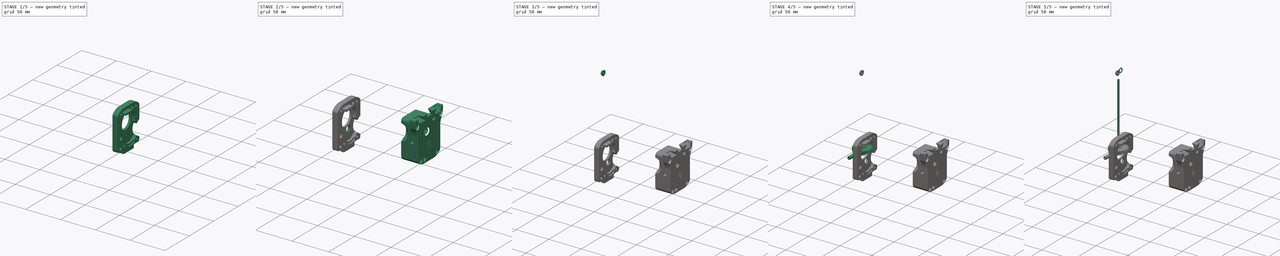
[diagram: build sequence overview — one tinted view per stage of 5, left to right]
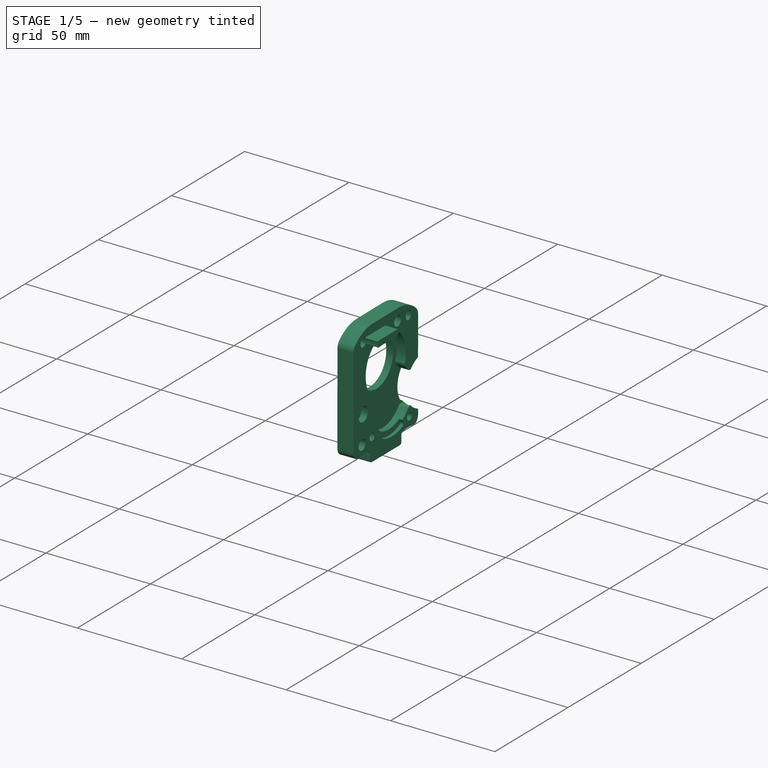
[diagram: stage 1 of 5 — iso view after this stage's code; geometry added in this stage tinted green]
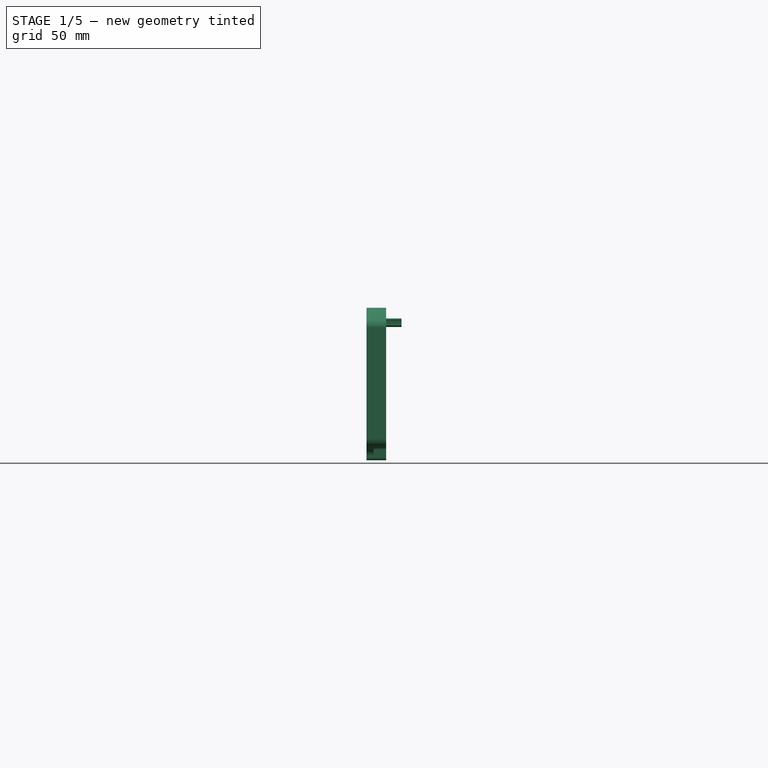
[diagram: stage 1 of 5 — front view after this stage's code; geometry added in this stage tinted green]
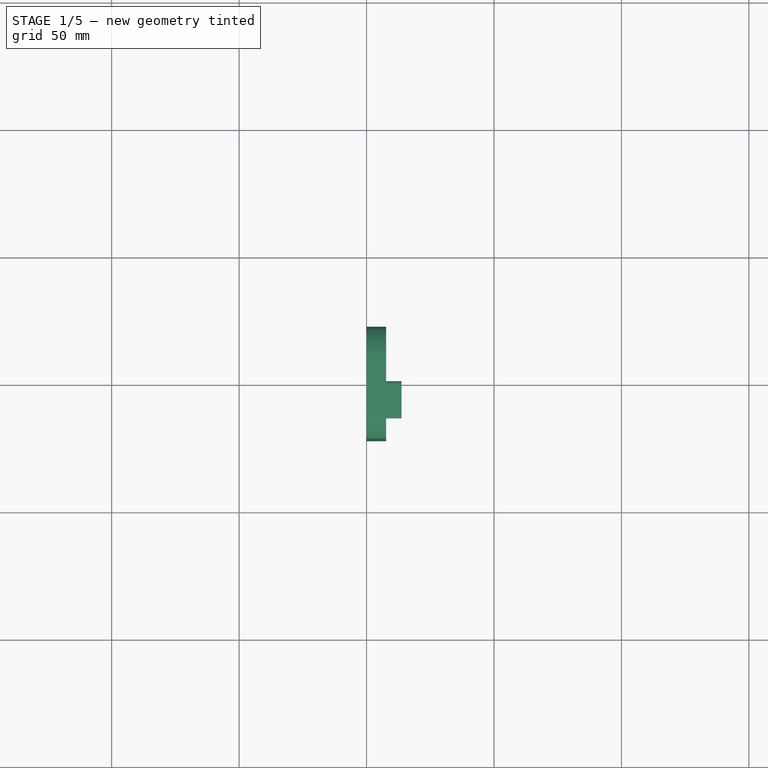
[diagram: stage 1 of 5 — top view after this stage's code; geometry added in this stage tinted green]
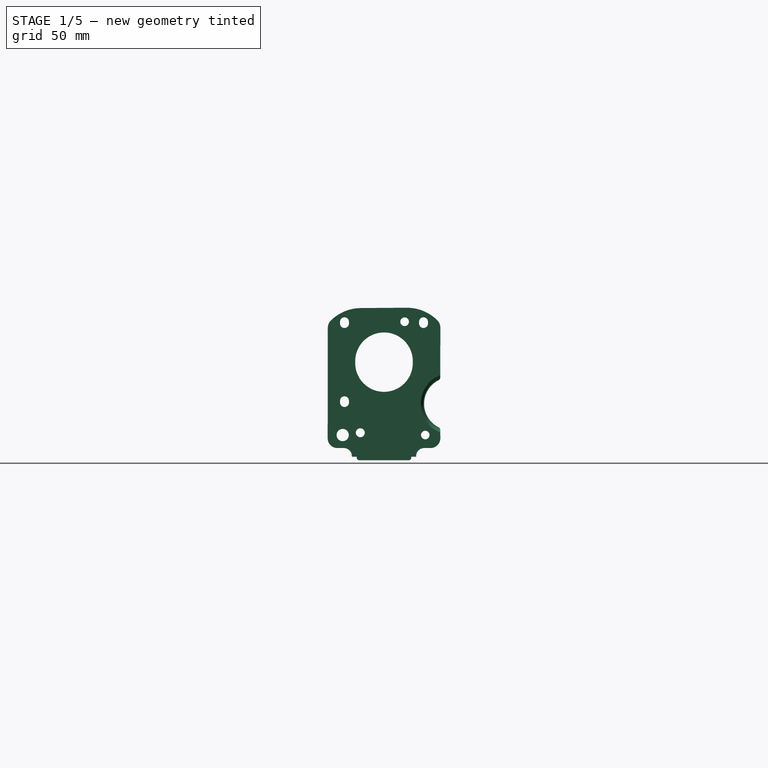
[diagram: stage 1 of 5 — right view after this stage's code; geometry added in this stage tinted green]
FCSTD DOCUMENT  (FreeCAD 0.20R30841 (Git))
Label: full
License: Creative Commons Attribution
LicenseURL: http://creativecommons.org/licenses/by/4.0/
objects: Sketcher::SketchObject×41, PartDesign::Pocket×24, Part::Feature×18, PartDesign::Pad×14, PartDesign::Body×13, App::Part×13, PartDesign::Plane×5, PartDesign::Groove×2, PartDesign::FeaturePython×2, App::Link×2, PartDesign::Chamfer×2, PartDesign::Fillet×1, PartDesign::Revolution×1, PartDesign::FeatureBase×1, PartDesign::Line×1, PartDesign::Mirrored×1, Spreadsheet::Sheet×1
note: 219 computed .brp shape members not serialized (recipe doc carries the construction recipe); baked Part::Feature solids carry a one-line shape summary decoded from their .brp

FEATURE [PartDesign::Body] Body025  label="ExtruderBody"
  AutoGroupSolids = false
  BaseFeature = -> Solid109
  ExportMode = 0
  Group = -> [BaseFeature,Sketch266,Pocket062,Sketch001,Pocket001,Sketch002,Pocket002,Sketch285,Pad125,Sketch274,Sketch275,Sketch276,Sketch277,Sketch278,Pocket072,Pocket063,Pocket064,Pocket065,Pocket066]
  Origin = -> Origin063
  Placement = pos=(0,155.429,37.0456) rot=(1,0,0;3.14159rad)
  Tip = -> Pocket066
  TreeRank = 2862
  _ExportChildren = -> [BaseFeature,Pocket062,Pocket001,Pocket002,Pad125,Pocket072,Pocket063,Pocket064,Pocket065,Pocket066]
  _GroupVersion = 1
FEATURE [App::Part] Part  label="Extruder_Body"
  ExportMode = 1
  Group = -> [Body025]
  Origin = -> Origin
  Placement = pos=(48.2,0,0) rot=(0,0,1;0rad)
  TreeRank = 2864
  _ExportChildren = -> [Body025]
  _GroupVersion = 1
FEATURE [PartDesign::Line] DatumLine
  AttacherType = Attacher::AttachEngineLine
  AttachmentOffset = pos=(26,-16.3,0) rot=(0,0,1;0rad)
  Length = 10
  MapMode = 29
  MinimumLength = 10
  Placement = pos=(0,26,-16.3) rot=(0.57735,0.57735,0.57735;2.0944rad)
  ResizeMode = 0
  Support = -> [X_Axis]
  TreeRank = 1991
FEATURE [PartDesign::Plane] DatumPlane004
  AttachmentOffset = pos=(0,0,13.7) rot=(0,0,1;0rad)
  Length = 10
  MapMode = 5
  MinimumLength = 10
  MinimumWidth = 10
  Placement = pos=(13.7,-3e-15,3e-15) rot=(0.57735,0.57735,0.57735;2.0944rad)
  ResizeMode = 0
  Support = -> [YZ_Plane]
  TreeRank = 1988
  Width = 10
FEATURE [Sketcher::SketchObject] Sketch271
  FullyConstrained = false
  MapMode = 5
  Placement = pos=(0,0,0) rot=(0.57735,0.57735,0.57735;2.0944rad)
  Support = -> [YZ_Plane]
  TreeRank = 1967
  sketch-geometry (32):
    g0: ArcOfCircle CenterX=0 CenterY=0.35 CenterZ=0 NormalX=0 NormalY=0 NormalZ=1 AngleXU=0 Radius=11.3 StartAngle=-9e-16 EndAngle=3.14159
    g1: ArcOfCircle CenterX=0 CenterY=-0.35 CenterZ=0 NormalX=0 NormalY=0 NormalZ=1 AngleXU=0 Radius=11.3 StartAngle=3.14159 EndAngle=6.28319
    g2: LineSegment StartX=-11.3 StartY=0.35 StartZ=0 EndX=-11.3 EndY=-0.35 EndZ=0
    g3: LineSegment StartX=11.3 StartY=0.35 StartZ=0 EndX=11.3 EndY=-0.35 EndZ=0
    g4: LineSegment StartX=-22.0442 StartY=13.5881 StartZ=0 EndX=-22.0996 EndY=-29.8966 EndZ=0
    g5: LineSegment StartX=-8.95788 StartY=21.225 StartZ=0 EndX=8.95882 EndY=21.3517 EndZ=0
    g6: LineSegment StartX=22.1004 StartY=13.5946 StartZ=0 EndX=22.0806 EndY=-6.19773 EndZ=0
    g7: LineSegment StartX=22.0806 StartY=-26.4764 StartZ=0 EndX=22.0997 EndY=-29.8966 EndZ=0
    g8: LineSegment StartX=18.3004 StartY=-33.6951 StartZ=0 EndX=15.8009 EndY=-33.6966 EndZ=0
    g9: LineSegment StartX=10.7009 StartY=-37.5014 StartZ=0 EndX=10.7009 EndY=-37.1035 EndZ=0
    g10: LineSegment StartX=-10.6991 StartY=-37.5014 StartZ=0 EndX=-10.6991 EndY=-37.1035 EndZ=0
    g11: LineSegment StartX=-12.6134 StartY=-37.1035 StartZ=0 EndX=-10.6991 EndY=-37.1035 EndZ=0
    g12: LineSegment StartX=10.7009 StartY=-37.1035 StartZ=0 EndX=12.6152 EndY=-37.1035 EndZ=0
    g13: LineSegment StartX=-9.69911 StartY=-38.5014 StartZ=0 EndX=9.70089 EndY=-38.5014 EndZ=0
    g14: LineSegment StartX=-12.6134 StartY=-36.5943 StartZ=0 EndX=-12.6134 EndY=-37.1035 EndZ=0
    g15: LineSegment StartX=12.6152 StartY=-36.5943 StartZ=0 EndX=12.6152 EndY=-37.1035 EndZ=0
    g16: ArcOfCircle CenterX=-9.69911 CenterY=-37.5014 CenterZ=0 NormalX=0 NormalY=0 NormalZ=1 AngleXU=0 Radius=1 StartAngle=3.14159 EndAngle=4.71239
    g17: ArcOfCircle CenterX=-15.7991 CenterY=-36.8966 CenterZ=0 NormalX=0 NormalY=0 NormalZ=1 AngleXU=0 Radius=3.2 StartAngle=0.0946094 EndAngle=1.5708
    g18: LineSegment StartX=-18.2996 StartY=-33.6966 StartZ=0 EndX=-15.7991 EndY=-33.6966 EndZ=0
    g19: ArcOfCircle CenterX=-18.2996 CenterY=-29.8966 CenterZ=0 NormalX=0 NormalY=0 NormalZ=1 AngleXU=0 Radius=3.8 StartAngle=3.14159 EndAngle=4.71239
    g20: ArcOfCircle CenterX=15.8009 CenterY=-36.8966 CenterZ=0 NormalX=0 NormalY=0 NormalZ=1 AngleXU=0 Radius=3.2 StartAngle=1.5708 EndAngle=3.04698
    g21: ArcOfCircle CenterX=18.3012 CenterY=-29.8966 CenterZ=0 NormalX=0 NormalY=0 NormalZ=1 AngleXU=0 Radius=3.79852 StartAngle=4.71219 EndAngle=6.28319
    g22: ArcOfCircle CenterX=26.076 CenterY=-16.3371 CenterZ=0 NormalX=0 NormalY=0 NormalZ=1 AngleXU=0 Radius=10.3458 StartAngle=2.03975 EndAngle=4.24343
    g23: ArcOfCircle CenterX=18.1004 CenterY=13.5946 CenterZ=0 NormalX=0 NormalY=0 NormalZ=1 AngleXU=0 Radius=4 StartAngle=6.28319 EndAngle=7.07409
    g24: ArcOfCircle CenterX=8.95882 CenterY=4.35173 CenterZ=0 NormalX=0 NormalY=0 NormalZ=1 AngleXU=0 Radius=17 StartAngle=0.790904 EndAngle=1.5708
    g25: ArcOfCircle CenterX=-18.0454 CenterY=13.4925 CenterZ=0 NormalX=0 NormalY=0 NormalZ=1 AngleXU=0 Radius=4 StartAngle=2.34304 EndAngle=3.11767
    g26: ArcOfCircle CenterX=-8.92865 CenterY=4.22498 CenterZ=0 NormalX=0 NormalY=0 NormalZ=1 AngleXU=0 Radius=17 StartAngle=1.57252 EndAngle=2.34683
    g27: ArcOfCircle CenterX=20.7157 CenterY=-5.89797 CenterZ=0 NormalX=0 NormalY=0 NormalZ=1 AngleXU=0 Radius=1.3974 StartAngle=5.29922 EndAngle=6.06699
    g28: ArcOfCircle CenterX=20.9478 CenterY=-26.6174 CenterZ=0 NormalX=0 NormalY=0 NormalZ=1 AngleXU=0 Radius=1.14153 StartAngle=0.12381 EndAngle=1.07635
    g29: LineSegment StartX=21.4895 StartY=-25.6126 StartZ=0 EndX=21.4001 EndY=-25.5659 EndZ=0
    g30: LineSegment StartX=21.4895 StartY=-7.06158 StartZ=0 EndX=21.4001 EndY=-7.10821 EndZ=0
    g31: ArcOfCircle CenterX=9.68901 CenterY=-37.4895 CenterZ=0 NormalX=0 NormalY=0 NormalZ=1 AngleXU=0 Radius=1.01195 StartAngle=4.72413 EndAngle=6.27145
  constraints (47):
    c: Tangent(g0,g3) = 1.5708
    c: Tangent(g0,g2) = -1.5708
    c: Tangent(g2,g1) = -1.5708
    c: Tangent(g3,g1) = 1.5708
    c: Vertical(g2)
    c: PointOnObject(g0,g-2)
    c: Radius(g0) = 11.3
    c: DistanceY(g1,g0) = 0.7
    c: Symmetric(g1,g0,g-1)
    c: Vertical(g10)
    c: Vertical(g9)
    c: Horizontal(g11)
    c: Horizontal(g12)
    c: Coincident(g12,g9)
    c: Vertical(g14)
    c: Vertical(g15)
    c: Coincident(g12,g15)
    c: Coincident(g11,g14)
    c: Coincident(g10,g11)
    c: Coincident(g16,g10)
    c: Coincident(g16,g13)
    c: Coincident(g17,g14)
    c: Coincident(g18,g17)
    c: Coincident(g19,g18)
    c: Coincident(g19,g4)
    c: Coincident(g20,g15)
    c: Coincident(g20,g8)
    c: Coincident(g21,g8)
    c: Coincident(g23,g6)
    c: Coincident(g24,g5)
    c: Coincident(g24,g23)
    c: Coincident(g25,g4)
    c: Coincident(g26,g5)
    c: Coincident(g26,g25)
    c: Coincident(g27,g6)
    c: Coincident(g28,g7)
    c: Coincident(g29,g28)
    c: Coincident(g29,g22)
    c: Coincident(g30,g27)
    c: Coincident(g30,g22)
    c: Coincident(g7,g21)
    c: Coincident(g31,g13)
    c: Coincident(g31,g9)
    c: Radius(g25) = 4
    c: Radius(g26) = 17
    c: Equal(g24,g26)
    c: Horizontal(g10,g9)
FEATURE [PartDesign::Pad] Pad126
  AddSubType = 0
  CheckUpToFaceLimits = true
  ClaimChildren = false
  Direction = (1,-2e-16,3e-16)
  Fit = 0
  FitJoin = 0
  InnerFit = 0
  InnerFitJoin = 0
  InnerTaperAngle = 0
  InnerTaperAngleRev = 0
  Length = 7.7
  Length2 = 100
  Linearize = true
  NewSolid = false
  Placement = pos=(0,0,0) rot=(0.57735,0.57735,0.57735;2.0944rad)
  Profile = -> Sketch271
  Suppress = false
  TreeRank = 1968
  Type = 0
  _ProfileBasedVersion = 1
FEATURE [Sketcher::SketchObject] Sketch272
  FullyConstrained = false
  MapMode = 5
  Placement = pos=(7.7,-1.7e-15,1.7e-15) rot=(0.57735,0.57735,0.57735;2.0944rad)
  Support = -> [Pad126]
  TreeRank = 1969
  sketch-geometry (10):
    g0: LineSegment StartX=-13.547 StartY=17.1517 StartZ=0 EndX=-1.5175 EndY=17.1517 EndZ=0
    g1: LineSegment StartX=-2.56231 StartY=13.8099 StartZ=0 EndX=-0.534892 EndY=13.9988 EndZ=0
    g2: LineSegment StartX=-0.389238 StartY=14.3132 StartZ=0 EndX=-0.534892 EndY=13.9988 EndZ=0
    g3: LineSegment StartX=-13.9103 StartY=16.5843 StartZ=0 EndX=-13.8192 EndY=14.6628 EndZ=0
    g4: ArcOfCircle CenterX=-13.547 CenterY=16.7517 CenterZ=0 NormalX=0 NormalY=0 NormalZ=1 AngleXU=0 Radius=0.4 StartAngle=1.5708 EndAngle=3.5735
    g5: ArcOfCircle CenterX=-13.4352 CenterY=14.5511 CenterZ=0 NormalX=0 NormalY=0 NormalZ=1 AngleXU=0 Radius=0.4 StartAngle=2.85845 EndAngle=4.80998
    g6: ArcOfCircle CenterX=-9.29911 CenterY=-27.6966 CenterZ=0 NormalX=0 NormalY=0 NormalZ=1 AngleXU=0 Radius=42.0497 StartAngle=1.40989 EndAngle=1.66839
    g7: ArcOfCircle CenterX=1.23331 CenterY=13.8059 CenterZ=0 NormalX=0 NormalY=0 NormalZ=1 AngleXU=0 Radius=1.7 StartAngle=2.18907 EndAngle=2.83857
    g8: ArcOfCircle CenterX=-0.33169 CenterY=16.0061 CenterZ=0 NormalX=0 NormalY=0 NormalZ=1 AngleXU=0 Radius=1 StartAngle=5.33066 EndAngle=7.60955
    g9: ArcOfCircle CenterX=-1.5175 CenterY=11.2517 CenterZ=0 NormalX=0 NormalY=0 NormalZ=1 AngleXU=0 Radius=5.9 StartAngle=1.32637 EndAngle=1.5708
  constraints (10):
    c: Coincident(g2,g1)
    c: Coincident(g4,g3)
    c: Coincident(g4,g0)
    c: Coincident(g5,g3)
    c: Coincident(g6,g5)
    c: Coincident(g6,g1)
    c: Coincident(g7,g2)
    c: Coincident(g8,g7)
    c: Coincident(g9,g0)
    c: Coincident(g9,g8)
FEATURE [PartDesign::Pad] Pad120
  AddSubType = 0
  BaseFeature = -> Pad126
  CheckUpToFaceLimits = true
  ClaimChildren = false
  Direction = (1,-7e-16,3e-16)
  Fit = 0
  FitJoin = 0
  InnerFit = 0
  InnerFitJoin = 0
  InnerTaperAngle = 0
  InnerTaperAngleRev = 0
  Length = 6
  Length2 = 100
  Linearize = true
  NewSolid = false
  Placement = pos=(0,0,0) rot=(0.57735,0.57735,0.57735;2.0944rad)
  Profile = -> Sketch272
  Suppress = false
  TreeRank = 1970
  Type = 0
  _ProfileBasedVersion = 1
FEATURE [Sketcher::SketchObject] Sketch273
  FullyConstrained = false
  MapMode = 5
  Placement = pos=(13.7,-3e-15,3e-15) rot=(0.57735,0.57735,0.57735;2.0944rad)
  Support = -> [DatumPlane004]
  TreeRank = 1971
  sketch-geometry (16):
    g0: ArcOfCircle CenterX=-15.4996 CenterY=15.1517 CenterZ=0 NormalX=0 NormalY=0 NormalZ=1 AngleXU=0 Radius=1.75 StartAngle=3.14159 EndAngle=6.28319
    g1: ArcOfCircle CenterX=-15.4996 CenterY=15.8517 CenterZ=0 NormalX=0 NormalY=0 NormalZ=1 AngleXU=0 Radius=1.75 StartAngle=0 EndAngle=3.14159
    g2: LineSegment StartX=-13.7496 StartY=15.1517 StartZ=0 EndX=-13.7496 EndY=15.8517 EndZ=0
    g3: LineSegment StartX=-17.2496 StartY=15.1517 StartZ=0 EndX=-17.2496 EndY=15.8517 EndZ=0
    g4: ArcOfCircle CenterX=15.5004 CenterY=15.1517 CenterZ=0 NormalX=0 NormalY=0 NormalZ=1 AngleXU=0 Radius=1.75 StartAngle=3.14159 EndAngle=6.28319
    g5: ArcOfCircle CenterX=15.5004 CenterY=15.8517 CenterZ=0 NormalX=0 NormalY=0 NormalZ=1 AngleXU=0 Radius=1.75 StartAngle=5e-16 EndAngle=3.14159
    g6: LineSegment StartX=17.2504 StartY=15.1517 StartZ=0 EndX=17.2504 EndY=15.8517 EndZ=0
    g7: LineSegment StartX=13.7504 StartY=15.1517 StartZ=0 EndX=13.7504 EndY=15.8517 EndZ=0
    g8: Circle CenterX=-16.1987 CenterY=-28.5966 CenterZ=0 NormalX=0 NormalY=0 NormalZ=1 AngleXU=0 Radius=2.4
    g9: Circle CenterX=-9.29911 CenterY=-27.6966 CenterZ=0 NormalX=0 NormalY=0 NormalZ=1 AngleXU=0 Radius=1.75
    g10: Circle CenterX=16.2004 CenterY=-28.5966 CenterZ=0 NormalX=0 NormalY=0 NormalZ=1 AngleXU=0 Radius=1.67042
    g11: ArcOfCircle CenterX=-15.4996 CenterY=-15.8483 CenterZ=0 NormalX=0 NormalY=0 NormalZ=1 AngleXU=0 Radius=1.75 StartAngle=3.14159 EndAngle=6.28319
    g12: ArcOfCircle CenterX=-15.4996 CenterY=-15.1483 CenterZ=0 NormalX=0 NormalY=0 NormalZ=1 AngleXU=0 Radius=1.75 StartAngle=3e-16 EndAngle=3.14159
    g13: LineSegment StartX=-13.7496 StartY=-15.8483 StartZ=0 EndX=-13.7496 EndY=-15.1483 EndZ=0
    g14: LineSegment StartX=-17.2496 StartY=-15.8483 StartZ=0 EndX=-17.2496 EndY=-15.1483 EndZ=0
    g15: Circle CenterX=8.08783 CenterY=15.8517 CenterZ=0 NormalX=0 NormalY=0 NormalZ=1 AngleXU=0 Radius=1.7
  constraints (27):
    c: Tangent(g0,g3) = 1.5708
    c: Tangent(g0,g2) = -1.5708
    c: Tangent(g2,g1) = -1.5708
    c: Tangent(g3,g1) = 1.5708
    c: Vertical(g2)
    c: Equal(g0,g1)
    c: Radius(g0) = 1.75
    c: DistanceY(g0,g1) = 0.7
    c: Tangent(g4,g7) = 1.5708
    c: Tangent(g4,g6) = -1.5708
    c: Tangent(g6,g5) = -1.5708
    c: Tangent(g7,g5) = 1.5708
    c: Vertical(g6)
    c: Equal(g4,g5)
    c: Equal(g0,g4) = 1.75
    c: DistanceY(g4,g5) = 0.7
    c: Radius(g9) = 1.75
    c: Radius(g8) = 2.4
    c: Tangent(g11,g14) = 1.5708
    c: Tangent(g11,g13) = -1.5708
    c: Tangent(g13,g12) = -1.5708
    c: Tangent(g14,g12) = 1.5708
    c: Vertical(g13)
    c: Equal(g11,g12)
    c: Equal(g0,g11) = 1.75
    c: DistanceY(g11,g12) = 0.7
    c: Radius(g15) = 1.7
FEATURE [PartDesign::Pocket] Pocket003
  AddSubType = 1
  BaseFeature = -> Pad120
  CheckUpToFaceLimits = true
  ClaimChildren = false
  Fit = 0
  FitJoin = 0
  InnerFit = 0
  InnerFitJoin = 0
  InnerTaperAngle = 0
  InnerTaperAngleRev = 0
  Length = 5
  Length2 = 100
  Linearize = true
  NewSolid = false
  Placement = pos=(0,0,0) rot=(0.57735,0.57735,0.57735;2.0944rad)
  Profile = -> Sketch273
  Suppress = false
  TreeRank = 1973
  Type = 1
  _ProfileBasedVersion = 1
  _Version = 0
FEATURE [Sketcher::SketchObject] Sketch286
  FullyConstrained = false
  MapMode = 5
  Placement = pos=(13.7,-3e-15,3e-15) rot=(0.57735,0.57735,0.57735;2.0944rad)
  Support = -> [DatumPlane004]
  TreeRank = 1975
  sketch-geometry (4):
    g0: LineSegment StartX=-18.5996 StartY=-15.8483 StartZ=0 EndX=-18.5996 EndY=-15.1483 EndZ=0
    g1: LineSegment StartX=-12.3996 StartY=-15.8483 StartZ=0 EndX=-12.3996 EndY=-15.1483 EndZ=0
    g2: ArcOfCircle CenterX=-15.4996 CenterY=-15.1483 CenterZ=0 NormalX=0 NormalY=0 NormalZ=1 AngleXU=0 Radius=3.1 StartAngle=6.28319 EndAngle=9.42478
    g3: ArcOfCircle CenterX=-15.4996 CenterY=-15.8483 CenterZ=0 NormalX=0 NormalY=0 NormalZ=1 AngleXU=0 Radius=3.1 StartAngle=3.14159 EndAngle=6.28319
  constraints (4):
    c: Coincident(g2,g0)
    c: Coincident(g2,g1)
    c: Coincident(g3,g1)
    c: Coincident(g3,g0)
FEATURE [PartDesign::Pocket] Pocket004
  AddSubType = 1
  BaseFeature = -> Pocket003
  CheckUpToFaceLimits = true
  ClaimChildren = false
  Fit = 0
  FitJoin = 0
  InnerFit = 0
  InnerFitJoin = 0
  InnerTaperAngle = 0
  InnerTaperAngleRev = 0
  Length = 9
  Length2 = 100
  Linearize = true
  NewSolid = false
  Placement = pos=(0,0,0) rot=(0.57735,0.57735,0.57735;2.0944rad)
  Profile = -> Sketch286
  Suppress = false
  TreeRank = 1977
  Type = 0
  _ProfileBasedVersion = 1
  _Version = 0
FEATURE [Sketcher::SketchObject] Sketch287
  FullyConstrained = false
  MapMode = 5
  Placement = pos=(13.7,-3e-15,3e-15) rot=(0.57735,0.57735,0.57735;2.0944rad)
  Support = -> [DatumPlane004]
  TreeRank = 1978
  sketch-geometry (1):
    g0: Circle CenterX=8.08783 CenterY=15.8517 CenterZ=0 NormalX=0 NormalY=0 NormalZ=1 AngleXU=0 Radius=2.4
  constraints (1):
    c: Radius(g0) = 2.4
FEATURE [PartDesign::Pocket] Pocket005
  AddSubType = 1
  BaseFeature = -> Pocket004
  CheckUpToFaceLimits = true
  ClaimChildren = false
  Fit = 0
  FitJoin = 0
  InnerFit = 0
  InnerFitJoin = 0
  InnerTaperAngle = 0
  InnerTaperAngleRev = 0
  Length = 10
  Length2 = 100
  Linearize = true
  NewSolid = false
  Placement = pos=(0,0,0) rot=(0.57735,0.57735,0.57735;2.0944rad)
  Profile = -> Sketch287
  Suppress = false
  TreeRank = 1979
  Type = 0
  _ProfileBasedVersion = 1
  _Version = 0
FEATURE [Sketcher::SketchObject] Sketch288
  FullyConstrained = false
  MapMode = 5
  Placement = pos=(13.7,-3e-15,3e-15) rot=(0.57735,0.57735,0.57735;2.0944rad)
  Support = -> [DatumPlane004]
  TreeRank = 1980
  sketch-geometry (8):
    g0: LineSegment StartX=11.4528 StartY=-28.5632 StartZ=0 EndX=11.9328 EndY=-29.4172 EndZ=0
    g1: LineSegment StartX=11.5621 StartY=-28.0467 StartZ=0 EndX=-2.07915 EndY=-28.4944 EndZ=0
    g2: ArcOfCircle CenterX=-1.29349 CenterY=-30.396 CenterZ=0 NormalX=0 NormalY=0 NormalZ=1 AngleXU=0 Radius=1.2 StartAngle=2.6937 EndAngle=4.33055
    g3: ArcOfCircle CenterX=-2.3114 CenterY=-28.82 CenterZ=0 NormalX=0 NormalY=0 NormalZ=1 AngleXU=0 Radius=0.4 StartAngle=5.83529 EndAngle=7.23449
    g4: LineSegment StartX=-1.95085 StartY=-28.9933 StartZ=0 EndX=-2.37512 EndY=-29.8763 EndZ=0
    g5: ArcOfCircle CenterX=11.8015 CenterY=-28.3672 CenterZ=0 NormalX=0 NormalY=0 NormalZ=1 AngleXU=0 Radius=0.4 StartAngle=2.2123 EndAngle=3.65363
    g6: ArcOfCircle CenterX=10.8867 CenterY=-30.0052 CenterZ=0 NormalX=0 NormalY=0 NormalZ=1 AngleXU=0 Radius=1.2 StartAngle=5.15837 EndAngle=6.79522
    g7: ArcOfCircle CenterX=4.35179 CenterY=-16.3371 CenterZ=0 NormalX=0 NormalY=0 NormalZ=1 AngleXU=0 Radius=16.35 StartAngle=4.33055 EndAngle=5.15837
  constraints (8):
    c: Coincident(g3,g1)
    c: Coincident(g4,g3)
    c: Coincident(g4,g2)
    c: Coincident(g5,g1)
    c: Coincident(g5,g0)
    c: Coincident(g6,g0)
    c: Coincident(g7,g2)
    c: Coincident(g7,g6)
FEATURE [PartDesign::Pocket] Pocket006
  AddSubType = 1
  BaseFeature = -> Pocket005
  CheckUpToFaceLimits = true
  ClaimChildren = false
  Fit = 0
  FitJoin = 0
  InnerFit = 0
  InnerFitJoin = 0
  InnerTaperAngle = 0
  InnerTaperAngleRev = 0
  Length = 7.6
  Length2 = 100
  Linearize = true
  NewSolid = false
  Placement = pos=(0,0,0) rot=(0.57735,0.57735,0.57735;2.0944rad)
  Profile = -> Sketch288
  Suppress = false
  TreeRank = 1982
  Type = 0
  _ProfileBasedVersion = 1
  _Version = 0
FEATURE [Sketcher::SketchObject] Sketch289
  FullyConstrained = false
  MapMode = 5
  Placement = pos=(0,0,0) rot=(0.57735,0.57735,-0.57735;4.18879rad)
  Support = -> [Pocket006]
  TreeRank = 1983
  sketch-geometry (1):
    g0: Circle CenterX=-9.29911 CenterY=27.6966 CenterZ=0 NormalX=0 NormalY=0 NormalZ=1 AngleXU=0 Radius=2.4
  constraints (1):
    c: Radius(g0) = 2.4
FEATURE [PartDesign::Pocket] Pocket007
  AddSubType = 1
  BaseFeature = -> Pocket006
  CheckUpToFaceLimits = true
  ClaimChildren = false
  Fit = 0
  FitJoin = 0
  InnerFit = 0
  InnerFitJoin = 0
  InnerTaperAngle = 0
  InnerTaperAngleRev = 0
  Length = 4.5
  Length2 = 100
  Linearize = true
  NewSolid = false
  Placement = pos=(0,0,0) rot=(0.57735,0.57735,0.57735;2.0944rad)
  Profile = -> Sketch289
  Suppress = false
  TreeRank = 1985
  Type = 0
  _ProfileBasedVersion = 1
  _Version = 0
FEATURE [Sketcher::SketchObject] Sketch290
  FullyConstrained = false
  MapMode = 5
  Placement = pos=(13.7,-3e-15,3e-15) rot=(0.57735,0.57735,0.57735;2.0944rad)
  Support = -> [DatumPlane004]
  TreeRank = 1986
  sketch-geometry (12):
    g0: ArcOfCircle CenterX=-19.4615 CenterY=-31.2713 CenterZ=0 NormalX=0 NormalY=0 NormalZ=1 AngleXU=0 Radius=2 StartAngle=4.01066 EndAngle=4.87036
    g1: ArcOfCircle CenterX=-11.7991 CenterY=-34.3367 CenterZ=0 NormalX=0 NormalY=0 NormalZ=1 AngleXU=0 Radius=1.1 StartAngle=6.28319 EndAngle=7.69488
    g2: ArcOfCircle CenterX=11.8009 CenterY=-34.3367 CenterZ=0 NormalX=0 NormalY=0 NormalZ=1 AngleXU=0 Radius=1.1 StartAngle=1.7299 EndAngle=3.14159
    g3: ArcOfCircle CenterX=19.4626 CenterY=-31.2712 CenterZ=0 NormalX=0 NormalY=0 NormalZ=1 AngleXU=0 Radius=2 StartAngle=4.55445 EndAngle=5.41422
    g4: ArcOfCircle CenterX=-15.3991 CenterY=-56.7729 CenterZ=0 NormalX=0 NormalY=0 NormalZ=1 AngleXU=0 Radius=23.8231 StartAngle=1.4117 EndAngle=1.72877
    g5: ArcOfCircle CenterX=15.4009 CenterY=-56.7729 CenterZ=0 NormalX=0 NormalY=0 NormalZ=1 AngleXU=0 Radius=23.8231 StartAngle=1.41285 EndAngle=1.7299
    g6: LineSegment StartX=-20.7526 StartY=-32.7988 StartZ=0 EndX=-20.7938 EndY=-39.3757 EndZ=0
    g7: LineSegment StartX=-20.7938 StartY=-39.3757 StartZ=0 EndX=-10.6991 EndY=-39.3757 EndZ=0
    g8: LineSegment StartX=-10.6991 StartY=-39.3757 StartZ=0 EndX=-10.6991 EndY=-34.3367 EndZ=0
    g9: LineSegment StartX=10.7009 StartY=-34.3367 StartZ=0 EndX=10.7009 EndY=-39.3757 EndZ=0
    g10: LineSegment StartX=10.7009 StartY=-39.3757 StartZ=0 EndX=20.7538 EndY=-39.3757 EndZ=0
    g11: LineSegment StartX=20.7538 StartY=-39.3757 StartZ=0 EndX=20.7538 EndY=-32.7985 EndZ=0
  constraints (18):
    c: Coincident(g4,g0)
    c: Coincident(g4,g1)
    c: Coincident(g5,g2)
    c: Coincident(g5,g3)
    c: Coincident(g0,g6)
    c: Coincident(g6,g7)
    c: Coincident(g7,g8)
    c: Coincident(g8,g1)
    c: Vertical(g8)
    c: Tangent(g8,g1)
    c: Tangent(g2,g9) = -1.5708
    c: Coincident(g9,g10)
    c: Horizontal(g10)
    c: Coincident(g10,g11)
    c: Coincident(g11,g3)
    c: Vertical(g11)
    c: Horizontal(g7)
    c: Horizontal(g7,g9)
FEATURE [PartDesign::Pocket] Pocket008
  AddSubType = 1
  BaseFeature = -> Pocket007
  CheckUpToFaceLimits = true
  ClaimChildren = false
  Fit = 0
  FitJoin = 0
  InnerFit = 0
  InnerFitJoin = 0
  InnerTaperAngle = 0
  InnerTaperAngleRev = 0
  Length = 10.9
  Length2 = 100
  Linearize = true
  NewSolid = false
  Placement = pos=(0,0,0) rot=(0.57735,0.57735,0.57735;2.0944rad)
  Profile = -> Sketch290
  Suppress = false
  TreeRank = 1987
  Type = 0
  _ProfileBasedVersion = 1
  _Version = 0
FEATURE [Sketcher::SketchObject] Sketch279
  FullyConstrained = false
  MapMode = 5
  Placement = pos=(13.7,-3e-15,3e-15) rot=(0.57735,0.57735,0.57735;2.0944rad)
  Support = -> [DatumPlane004]
  TreeRank = 1989
  sketch-geometry (12):
    g0: ArcOfCircle CenterX=0 CenterY=0.35 CenterZ=0 NormalX=0 NormalY=0 NormalZ=1 AngleXU=0 Radius=13.7 StartAngle=1e-16 EndAngle=3.14159
    g1: ArcOfCircle CenterX=0 CenterY=-0.35 CenterZ=0 NormalX=0 NormalY=0 NormalZ=1 AngleXU=0 Radius=13.7 StartAngle=3.14159 EndAngle=3.9957
    g2: LineSegment StartX=-13.7 StartY=0.35 StartZ=0 EndX=-13.7 EndY=-0.35 EndZ=0
    g3: LineSegment StartX=13.7 StartY=0.35 StartZ=0 EndX=13.7 EndY=-0.35 EndZ=0
    g4: ArcOfCircle CenterX=26.076 CenterY=-16.3371 CenterZ=0 NormalX=0 NormalY=0 NormalZ=1 AngleXU=0 Radius=11.6 StartAngle=3.92648 EndAngle=8.63353
    g5: ArcOfCircle CenterX=16.678 CenterY=-6.40675 CenterZ=0 NormalX=0 NormalY=0 NormalZ=1 AngleXU=0 Radius=2.09027 StartAngle=3.81311 EndAngle=5.34963
    g6: ArcOfCircle CenterX=4.34739 CenterY=-16.35 CenterZ=0 NormalX=0 NormalY=0 NormalZ=1 AngleXU=0 Radius=13.75 StartAngle=2.81327 EndAngle=5.63529
    g7: ArcOfCircle CenterX=15.0599 CenterY=-4.80082 CenterZ=0 NormalX=0 NormalY=0 NormalZ=1 AngleXU=0 Radius=2.02473 StartAngle=2.98859 EndAngle=3.82601
    g8: ArcOfCircle CenterX=-10.7325 CenterY=-11.8066 CenterZ=0 NormalX=0 NormalY=0 NormalZ=1 AngleXU=0 Radius=2.06731 StartAngle=6.23012 EndAngle=6.85977
    g9: ArcOfCircle CenterX=0 CenterY=-0.35 CenterZ=0 NormalX=0 NormalY=0 NormalZ=1 AngleXU=0 Radius=13.7 StartAngle=5.97603 EndAngle=6.28319
    g10: ArcOfCircle CenterX=4.34739 CenterY=-16.35 CenterZ=0 NormalX=0 NormalY=0 NormalZ=1 AngleXU=0 Radius=13.75 StartAngle=0.679704 EndAngle=0.843304
    g11: ArcOfCircle CenterX=16.6619 CenterY=-26.2157 CenterZ=0 NormalX=0 NormalY=0 NormalZ=1 AngleXU=0 Radius=2.06921 StartAngle=0.947689 EndAngle=2.28213
  constraints (24):
    c: Tangent(g0,g3) = 1.5708
    c: Tangent(g0,g2) = -1.5708
    c: Tangent(g2,g1) = -1.5708
    c: Coincident(g3,g9) = 1.5708
    c: Vertical(g2)
    c: PointOnObject(g0,g-2)
    c: Radius(g0) = 13.7
    c: DistanceY(g2,g2) = 0.7
    c: Symmetric(g0,g1,g-1)
    c: Radius(g4) = 11.6
    c: Radius(g6) = 13.75
    c: Coincident(g8,g6)
    c: Equal(g1,g9)
    c: Coincident(g1,g9)
    c: Coincident(g8,g1)
    c: Coincident(g7,g10)
    c: Coincident(g7,g9)
    c: Equal(g6,g10)
    c: Coincident(g6,g10)
    c: Coincident(g5,g4)
    c: PointOnObject(g10,g5)
    c: Coincident(g11,g4)
    c: Coincident(g11,g6)
    c: DistanceY(g6) = -16.35
FEATURE [PartDesign::Pocket] Pocket009
  AddSubType = 1
  BaseFeature = -> Pocket008
  CheckUpToFaceLimits = true
  ClaimChildren = false
  Fit = 0
  FitJoin = 0
  InnerFit = 0
  InnerFitJoin = 0
  InnerTaperAngle = 0
  InnerTaperAngleRev = 0
  Length = 10.5
  Length2 = 100
  Linearize = true
  NewSolid = false
  Placement = pos=(0,0,0) rot=(0.57735,0.57735,0.57735;2.0944rad)
  Profile = -> Sketch279
  Suppress = false
  TreeRank = 1990
  Type = 0
  _ProfileBasedVersion = 1
  _Version = 1
FEATURE [Sketcher::SketchObject] Sketch291
  FullyConstrained = false
  MapMode = 5
  Placement = pos=(9.7e-15,22.0868,-0.0221739) rot=(0.577543,0.577543,0.576964;4.18821rad)
  Support = -> [Pocket009]
  TreeRank = 1992
  sketch-geometry (4):
    g0: ArcOfCircle CenterX=-16.35 CenterY=6.07101 CenterZ=0 NormalX=0 NormalY=0 NormalZ=1 AngleXU=0 Radius=11.2237 StartAngle=2.99594 EndAngle=3.65076
    g1: LineSegment StartX=-27.4549 StartY=7.7 StartZ=0 EndX=-16.35 EndY=7.7 EndZ=0
    g2: LineSegment StartX=-16.35 StartY=7.7 StartZ=0 EndX=-16.35 EndY=0.6 EndZ=0
    g3: LineSegment StartX=-26.15 StartY=0.6 StartZ=0 EndX=-16.35 EndY=0.6 EndZ=0
  constraints (12):
    c: Coincident(g1,g2)
    c: Horizontal(g1)
    c: Vertical(g2)
    c: Coincident(g1,g0)
    c: Vertical(g0,g1)
    c: DistanceX(g2) = -16.35
    c: DistanceY(g1) = 7.7
    c: DistanceX(g0,g2) = 9.8
    c: DistanceY(g-1,g0) = 0.6
    c: Coincident(g3,g2)
    c: Coincident(g3,g0)
    c: Horizontal(g3)
FEATURE [PartDesign::Groove] Groove001
  AddSubType = 1
  Angle = 360
  Axis = (1,0,0)
  Base = (0,26,-16.3)
  BaseFeature = -> Pocket009
  ClaimChildren = false
  Fit = 0
  FitJoin = 0
  InnerFit = 0
  InnerFitJoin = 0
  Linearize = true
  NewSolid = false
  Placement = pos=(0,0,0) rot=(0.57735,0.57735,0.57735;2.0944rad)
  Profile = -> Sketch291
  ReferenceAxis = -> DatumLine
  Reversed = true
  Suppress = false
  TreeRank = 1993
  _ProfileBasedVersion = 1
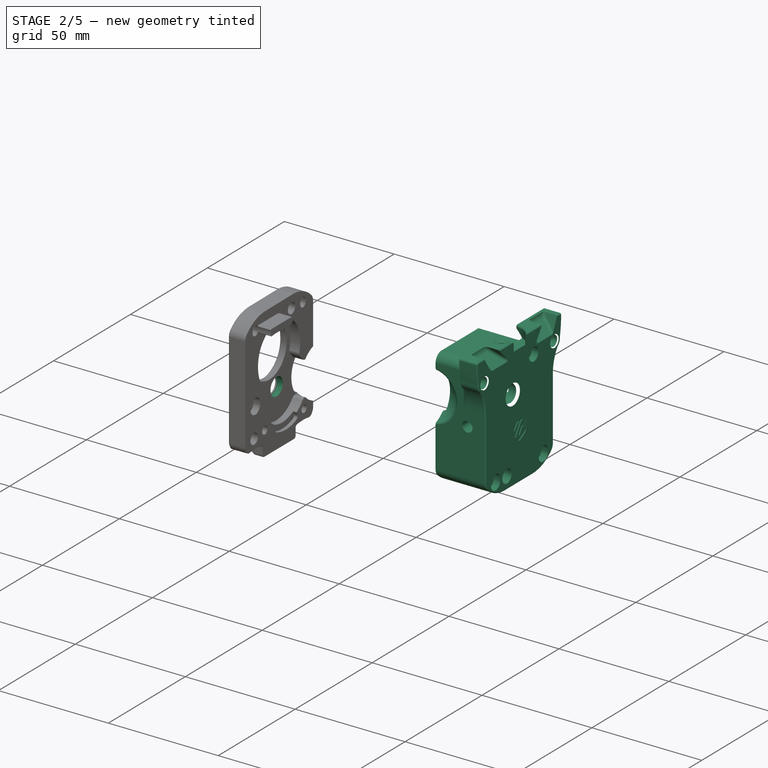
[diagram: stage 2 of 5 — iso view after this stage's code; geometry added in this stage tinted green]
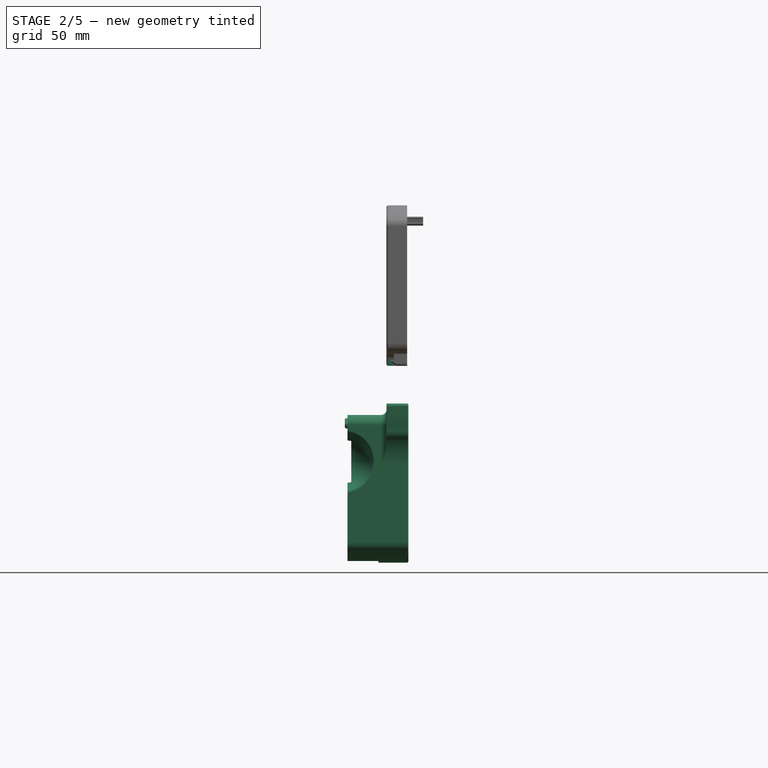
[diagram: stage 2 of 5 — front view after this stage's code; geometry added in this stage tinted green]
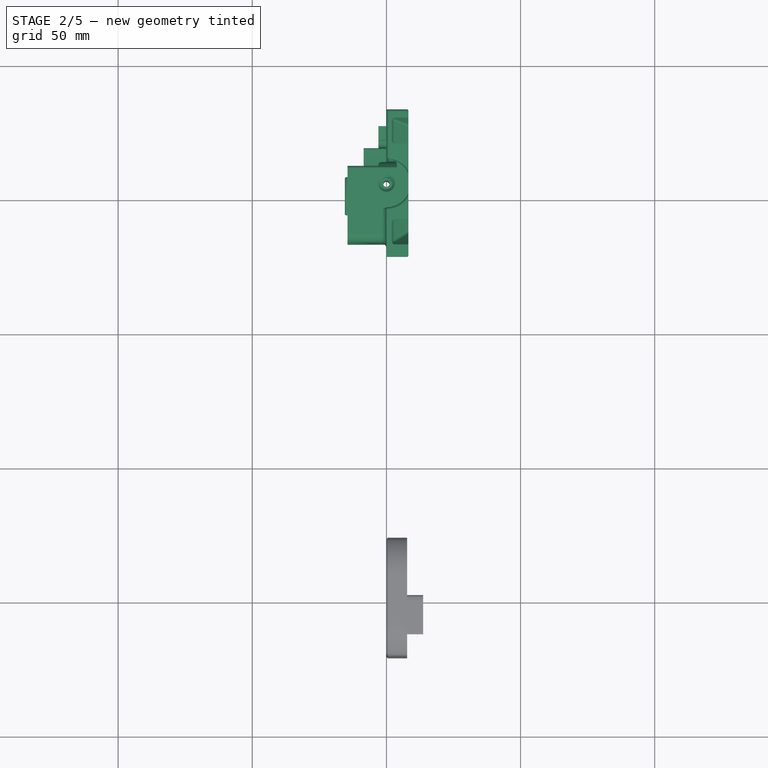
[diagram: stage 2 of 5 — top view after this stage's code; geometry added in this stage tinted green]
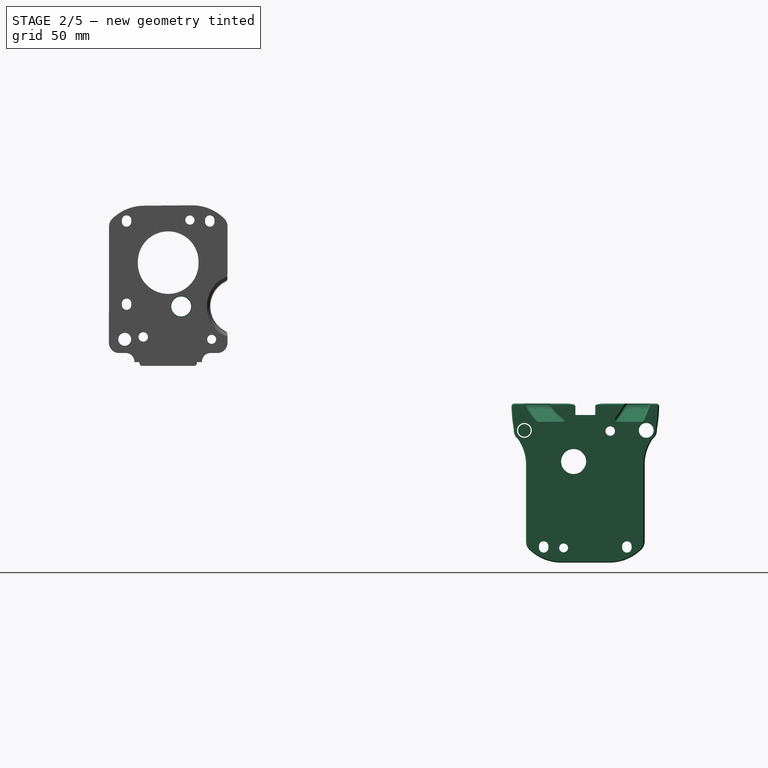
[diagram: stage 2 of 5 — right view after this stage's code; geometry added in this stage tinted green]
FEATURE [PartDesign::Body] Body028  label="MF83_Bearing:2"
  AutoGroupSolids = false
  ExportMode = 0
  Group = -> [Sketch283,Pad123,Sketch284,Pad124]
  Origin = -> Origin066
  Placement = pos=(-13,-8.4,0) rot=(0,0,1;3.14159rad)
  Tip = -> Pad124
  TreeRank = 2299
  _ExportChildren = -> [Pad123,Pad124]
  _GroupVersion = 1
FEATURE [App::Part] Part037  label="MyBits"
  ExportMode = 1
  Group = -> [Body,Body001,Body002,Body010,Body008,Body021,Body022,Body023,Body024,Body027,Body028]
  Origin = -> Origin058
  TreeRank = 2389
  _ExportChildren = -> [Body,Body001,Body002,Body010,Body008,Body021,Body022,Body023,Body024,Body027,Body028]
  _GroupVersion = 1
FEATURE [Part::Feature] Solid008  label="shafft 3 x 20"
  Placement = pos=(0,0,-7) rot=(0.762006,0.457901,0.457901;1.83931rad)
  TreeRank = 2646
  shape: bbox 3.105 x 3.105 x 20 mm, 5 faces (baked)
FEATURE [Part::Feature] Compound  label="M3x5x7 Needlebearing"
  Placement = pos=(0,0,6.5) rot=(0,0,1;0.934483rad)
  TreeRank = 2647
  shape: bbox 4.885 x 4.874 x 7 mm, 53 faces, 6 solids (baked)
FEATURE [Part::Feature] Solid009  label="Direct_Drivegear_without_setscrew (1)"
  TreeRank = 2648
  shape: bbox 10.61 x 10.61 x 14 mm, 128 faces (baked)
FEATURE [App::Link] Link011  label="M3x5x7 Needlebearing:2"
  AutoLinkLabel = true
  AutoPlacement = true
  LinkPlacement = pos=(0,0,-0.501) rot=(0,0,1;0.971749rad)
  LinkedObject = -> Compound
  Placement = pos=(0,0,-0.501) rot=(0,0,1;0.971749rad)
  SyncGroupVisibility = false
  TreeRank = 2649
  _LinkVersion = 1
FEATURE [App::Part] Part039  label="Direct_Drivegear_without_setscrew"
  ExportMode = 1
  Group = -> [Solid008,Compound,Solid009,Link011]
  Origin = -> Origin068
  Placement = pos=(-6.999,4.25,-81.163) rot=(0.235103,0.943108,0.235103;1.62934rad)
  TreeRank = 2651
  _ExportChildren = -> [Solid008,Compound,Solid009,Link011]
  _GroupVersion = 1
FEATURE [Part::Feature] Solid010  label="SOLID"
  TreeRank = 2652
  shape: bbox 19.62 x 16.67 x 46.82 mm, 104 faces (baked)
FEATURE [App::Part] Part040  label="Guidler (1)"
  ExportMode = 1
  Group = -> [Part039,Solid010]
  Origin = -> Origin069
  TreeRank = 2654
  _ExportChildren = -> [Part039,Solid010]
  _GroupVersion = 1
FEATURE [Part::Feature] Solid011  label="SOLID"
  TreeRank = 2656
  shape: bbox 10.6 x 20.85 x 11.48 mm, 57 faces (baked)
FEATURE [App::Part] Part041  label="Latch Shuttle"
  ExportMode = 1
  Group = -> [Solid011]
  Origin = -> Origin070
  Placement = pos=(-1.09324e-11,-0.52364,-241.336) rot=(0,0,1;0rad)
  TreeRank = 2658
  _ExportChildren = -> [Solid011]
  _GroupVersion = 1
FEATURE [Part::Feature] Solid012  label="M3 Thumb Screw (1)^Spring Assembly (1)_Guidler_VORON Clockwork_X Carr
iage"
  Placement = pos=(28.5,-5.79955,-186.247) rot=(1,0,0;3.14159rad)
  TreeRank = 2659
  shape: bbox 12 x 22.5 x 12 mm, 7 faces (baked)
FEATURE [Part::Feature] Solid013  label="Spring Assembly (1)-40^Spring Assembly (1)_Guidler_VORON Clockwork_X 
Carriage"
  TreeRank = 2660
  shape: bbox 6.799 x 11.2 x 6.803 mm, 6 faces (baked)
FEATURE [App::Part] Part042  label="Spring Assembly"
  ExportMode = 1
  Group = -> [Solid012,Solid013]
  Origin = -> Origin071
  Placement = pos=(-28.5,-5.79955,-186.247) rot=(1,0,0;3.14159rad)
  TreeRank = 2662
  _ExportChildren = -> [Solid012,Solid013]
  _GroupVersion = 1
FEATURE [App::Part] Part043  label="Guidler"
  ExportMode = 1
  Group = -> [Part040,Part041,Part042]
  Origin = -> Origin072
  Placement = pos=(17.317,-41.16,58.904) rot=(0,0,1;0rad)
  TreeRank = 2664
  _ExportChildren = -> [Part040,Part041,Part042]
  _GroupVersion = 1
FEATURE [Part::Feature] Solid014  label="Latch"
  Placement = pos=(250.353,-54.2044,-241.043) rot=(0,0,1;0rad)
  TreeRank = 2665
  shape: bbox 11 x 34.34 x 24.06 mm, 84 faces (baked)
FEATURE [Part::Feature] Compound001  label="Shaft-assembly"
  Placement = pos=(24.3081,94.4506,-53.9704) rot=(-0.561818,0.607225,0.561818;2.05016rad)
  TreeRank = 2666
  shape: bbox 25.99 x 26 x 28 mm, 423 faces, 2 solids (baked)
FEATURE [Part::Feature] Solid015  label="MR85 Ballbearing 5x8x2"
  Placement = pos=(20.7338,94.7286,-54.972) rot=(0,0,-1;1.34621rad)
  TreeRank = 2667
  shape: bbox 8 x 8 x 2.5 mm, 8 faces (baked)
FEATURE [Part::Feature] Solid016  label="Direct_Drivegear"
  Placement = pos=(20.7338,94.7286,-42.6707) rot=(0,0,-1;1.64844rad)
  TreeRank = 2668
  shape: bbox 10.58 x 10.58 x 13.8 mm, 131 faces (baked)
FEATURE [App::Link] Link013  label="MR85 Ballbearing 5x8x2:2"
  AutoLinkLabel = true
  AutoPlacement = true
  LinkPlacement = pos=(20.7338,94.7286,-29.8717) rot=(0,0,-1;1.43839rad)
  LinkedObject = -> Solid015
  Placement = pos=(20.7338,94.7286,-29.8717) rot=(0,0,-1;1.43839rad)
  SyncGroupVisibility = false
  TreeRank = 2669
  _LinkVersion = 1
FEATURE [App::Part] Part044  label="Driveshaft Assembly"
  ExportMode = 1
  Group = -> [Compound001,Solid015,Solid016,Link013]
  Origin = -> Origin073
  Placement = pos=(8.23414,-1.05953,-35) rot=(0,0,1;0.087266rad)
  TreeRank = 2671
  _ExportChildren = -> [Compound001,Solid015,Solid016,Link013]
  _GroupVersion = 1
FEATURE [App::Part] Part045  label="BMG Drive Mechanism"
  ExportMode = 1
  Group = -> [Part044]
  Origin = -> Origin074
  Placement = pos=(87.99,-82.7,-117.37) rot=(0.57735,0.57735,0.57735;2.0944rad)
  TreeRank = 2673
  _ExportChildren = -> [Part044]
  _GroupVersion = 1
  expr: Placement.Base.y = -82.2 - <<ss>>.gap_x
FEATURE [Part::Feature] Solid017  label="Motorgear_17T_without_setscrew"
  Placement = pos=(1.4006e-12,-0.000891144,67.0503) rot=(0,0,1;1.61807rad)
  TreeRank = 2674
  shape: bbox 13.11 x 13.02 x 13 mm, 205 faces (baked)
FEATURE [Part::Feature] Solid021  label="NEMA17 Short (4)"
  TreeRank = 2678
  shape: bbox 40.8 x 40.8 x 6 mm, 15 faces (baked)
FEATURE [Part::Feature] Solid022  label="NEMA17 Short (5)"
  TreeRank = 2679
  shape: bbox 42 x 43 x 10 mm, 106 faces (baked)
FEATURE [Part::Feature] Solid023  label="NEMA17 Short (6)"
  TreeRank = 2680
  shape: bbox 21.3 x 4.5 x 4.9 mm, 27 faces (baked)
FEATURE [Part::Feature] Solid020  label="NEMA17 Short (3)"
  TreeRank = 2848
  shape: bbox 42 x 42 x 10.05 mm, 33 faces (baked)
FEATURE [Part::Feature] Solid019  label="NEMA17 Short (2)"
  TreeRank = 2860
  shape: bbox 5 x 5 x 39 mm, 7 faces (baked)
FEATURE [App::Part] Part046  label="NEMA17 Short"
  ExportMode = 1
  Group = -> [Solid017,Solid019,Solid020,Solid021,Solid022,Solid023]
  Origin = -> Origin075
  Placement = pos=(-96.9337,-57.2557,-38.9474) rot=(0.707107,0,0.707107;3.14159rad)
  TreeRank = 2683
  _ExportChildren = -> [Solid017,Solid019,Solid020,Solid021,Solid022,Solid023]
  _GroupVersion = 1
FEATURE [App::Part] Part047  label="Clockwork"
  ExportMode = 1
  Group = -> [Part043,Solid014,Part045,Part046]
  Origin = -> Origin076
  Placement = pos=(-17.3165,-57.2552,88.9044) rot=(1,0,0;3.14159rad)
  TreeRank = 2687
  _ExportChildren = -> [Part043,Solid014,Part045,Part046]
  _GroupVersion = 1
FEATURE [App::Part] Part073  label="Afterburner_Assembly v9"
  ExportMode = 1
  Group = -> [Part047]
  Origin = -> Origin102
  TreeRank = 2847
  _ExportChildren = -> [Part047]
  _GroupVersion = 1
FEATURE [Part::Feature] Solid109  label="SOLID003"
  Placement = pos=(0,151.129,-74.1544) rot=(1,0,0;3.14159rad)
  TreeRank = 2865
  shape: bbox 26.08 x 55.04 x 60.03 mm, 313 faces (baked)
FEATURE [PartDesign::FeatureBase] BaseFeature
  BaseFeature = -> Solid109
  NewSolid = false
  Suppress = false
  TreeRank = 2861
FEATURE [Sketcher::SketchObject] Sketch266
  ExternalGeometry = -> [BaseFeature]
  FullyConstrained = true
  MapMode = 5
  Placement = pos=(0,-2.8412e-12,-56.778) rot=(0,0,1;0rad)
  Support = -> [BaseFeature]
  TreeRank = 584
  sketch-geometry (1):
    g0: Circle CenterX=-9.0599e-07 CenterY=155.464 CenterZ=0 NormalX=0 NormalY=0 NormalZ=1 AngleXU=0 Radius=2.2
  constraints (2):
    c: Coincident(g0,g-3)
    c: Radius(g0) = 2.2
FEATURE [PartDesign::Pocket] Pocket062
  AddSubType = 1
  BaseFeature = -> BaseFeature
  CheckUpToFaceLimits = true
  ClaimChildren = false
  Fit = 0
  FitJoin = 0
  InnerFit = 0
  InnerFitJoin = 0
  InnerTaperAngle = 0
  InnerTaperAngleRev = 0
  Length = 8
  Length2 = 100
  Linearize = true
  NewSolid = false
  Profile = -> Sketch266
  Suppress = false
  TreeRank = 585
  Type = 0
  _ProfileBasedVersion = 1
  _Version = 1
FEATURE [Sketcher::SketchObject] Sketch292
  FullyConstrained = false
  MapMode = 5
  Placement = pos=(-9.7e-15,-22.0615,0.0280685) rot=(0.577105,0.577105,-0.57784;2.09366rad)
  Support = -> [Groove001]
  TreeRank = 1994
  sketch-geometry (3):
    g0: LineSegment StartX=38.8145 StartY=3.79023 StartZ=0 EndX=35.0566 EndY=0 EndZ=0
    g1: LineSegment StartX=35.0566 StartY=0 StartZ=0 EndX=38.8145 EndY=0 EndZ=0
    g2: LineSegment StartX=38.8145 StartY=0 StartZ=0 EndX=38.8145 EndY=3.79023 EndZ=0
  constraints (6):
    c: Coincident(g0,g1)
    c: PointOnObject(g1,g-1)
    c: Coincident(g1,g2)
    c: Coincident(g2,g0)
    c: Vertical(g2)
    c: Horizontal(g1)
FEATURE [PartDesign::Pocket] Pocket010
  AddSubType = 1
  BaseFeature = -> Groove001
  CheckUpToFaceLimits = true
  ClaimChildren = false
  Fit = 0
  FitJoin = 0
  InnerFit = 0
  InnerFitJoin = 0
  InnerTaperAngle = 0
  InnerTaperAngleRev = 0
  Length = 15
  Length2 = 100
  Linearize = true
  NewSolid = false
  Placement = pos=(0,0,0) rot=(0.57735,0.57735,0.57735;2.0944rad)
  Profile = -> Sketch292
  Suppress = false
  TreeRank = 1995
  Type = 0
  _ProfileBasedVersion = 1
  _Version = 1
FEATURE [PartDesign::Mirrored] Mirrored
  AddSubType = 0
  BaseFeature = -> Pocket010
  CopyShape = false
  MirrorPlane = -> XZ_Plane
  NewSolid = false
  OriginalSubs = -> [Pocket010]
  Originals = -> [Pocket010]
  ParallelTransform = true
  Placement = pos=(0,0,0) rot=(0.57735,0.57735,0.57735;2.0944rad)
  SubTransform = true
  Suppress = false
  TreeRank = 1996
  _Version = 3
FEATURE [Sketcher::SketchObject] Sketch293
  FullyConstrained = true
  MapMode = 5
  Placement = pos=(13.7,-3e-15,3e-15) rot=(0.57735,0.57735,0.57735;2.0944rad)
  Support = -> [DatumPlane004]
  TreeRank = 1998
  expr: Constraints[1] = -16.35 + <<ss>>.gap_y
  expr: Constraints[2] = 4.35 + <<ss>>.gap_x
  sketch-geometry (1):
    g0: Circle CenterX=4.85 CenterY=-16.35 CenterZ=0 NormalX=0 NormalY=0 NormalZ=1 AngleXU=0 Radius=13.75
  constraints (3):
    c: Radius(g0) = 13.75
    c: DistanceY(g0) = -16.35
    c: DistanceX(g-1,g0) = 4.85
FEATURE [PartDesign::Pocket] Pocket011
  AddSubType = 1
  BaseFeature = -> Mirrored
  CheckUpToFaceLimits = true
  ClaimChildren = false
  Fit = 0
  FitJoin = 0
  InnerFit = 0
  InnerFitJoin = 0
  InnerTaperAngle = 0
  InnerTaperAngleRev = 0
  Length = 0
  Length2 = 100
  Linearize = true
  NewSolid = false
  Placement = pos=(0,0,0) rot=(0.57735,0.57735,0.57735;2.0944rad)
  Profile = -> Sketch293
  Suppress = false
  TreeRank = 1999
  Type = 3
  UpToFace = -> Mirrored [Face106]
  _ProfileBasedVersion = 1
  _Version = 1
FEATURE [Sketcher::SketchObject] Sketch294
  FullyConstrained = true
  MapMode = 5
  Placement = pos=(13.7,-3e-15,3e-15) rot=(0.57735,0.57735,0.57735;2.0944rad)
  Support = -> [DatumPlane004]
  TreeRank = 2000
  expr: Constraints[1] = 4.35 + <<ss>>.gap_x
  expr: Constraints[2] = -16.35 + <<ss>>.gap_y
  sketch-geometry (1):
    g0: Circle CenterX=4.85 CenterY=-16.35 CenterZ=0 NormalX=0 NormalY=0 NormalZ=1 AngleXU=0 Radius=3.7
  constraints (3):
    c: Radius(g0) = 3.7
    c: DistanceX(g0) = 4.85
    c: DistanceY(g0) = -16.35
FEATURE [PartDesign::Pocket] Pocket012
  AddSubType = 1
  BaseFeature = -> Pocket011
  CheckUpToFaceLimits = true
  ClaimChildren = false
  Fit = 0
  FitJoin = 0
  InnerFit = 0
  InnerFitJoin = 0
  InnerTaperAngle = 0
  InnerTaperAngleRev = 0
  Length = 5
  Length2 = 100
  Linearize = true
  NewSolid = false
  Placement = pos=(0,0,0) rot=(0.57735,0.57735,0.57735;2.0944rad)
  Profile = -> Sketch294
  Suppress = false
  TreeRank = 2001
  Type = 1
  _ProfileBasedVersion = 1
  _Version = 1
FEATURE [Sketcher::SketchObject] Sketch295
  FullyConstrained = true
  MapMode = 5
  Placement = pos=(13.7,-3e-15,3e-15) rot=(0.57735,0.57735,0.57735;2.0944rad)
  Support = -> [DatumPlane004]
  TreeRank = 2002
  expr: Constraints[1] = 4.35 + <<ss>>.gap_x
  expr: Constraints[2] = -16.35 + <<ss>>.gap_y
  sketch-geometry (1):
    g0: Circle CenterX=4.85 CenterY=-16.35 CenterZ=0 NormalX=0 NormalY=0 NormalZ=1 AngleXU=0 Radius=4.05
  constraints (3):
    c: Radius(g0) = 4.05
    c: DistanceX(g0) = 4.85
    c: DistanceY(g0) = -16.35
FEATURE [PartDesign::Pocket] Pocket013
  AddSubType = 1
  BaseFeature = -> Pocket012
  CheckUpToFaceLimits = true
  ClaimChildren = false
  Fit = 0
  FitJoin = 0
  InnerFit = 0
  InnerFitJoin = 0
  InnerTaperAngle = 0
  InnerTaperAngleRev = 0
  Length = 13
  Length2 = 100
  Linearize = true
  NewSolid = false
  Placement = pos=(0,0,0) rot=(0.57735,0.57735,0.57735;2.0944rad)
  Profile = -> Sketch295
  Suppress = false
  TreeRank = 2003
  Type = 0
  _ProfileBasedVersion = 1
  _Version = 1
FEATURE [PartDesign::Chamfer] Chamfer
  AddSubType = 0
  Angle = 45
  Base = -> Pocket013 [Edge51,Edge42,Edge52,Edge46,Edge47,Edge32,Edge37]
  BaseFeature = -> Pocket013
  ChamferType = 0
  FlipDirection = false
  NewSolid = false
  Placement = pos=(0,0,0) rot=(0.57735,0.57735,0.57735;2.0944rad)
  Size = 0.5
  Size2 = 1
  SupportTransform = false
  Suppress = false
  TreeRank = 2005
FEATURE [PartDesign::Chamfer] Chamfer001
  AddSubType = 0
  Angle = 45
  Base = -> Chamfer [Edge11,Edge25,Edge22,Edge24,Edge26,Edge18,Edge20,Edge86,Edge100,Edge114,Edge89]
  BaseFeature = -> Chamfer
  ChamferType = 0
  FlipDirection = false
  NewSolid = false
  Placement = pos=(0,0,0) rot=(0.57735,0.57735,0.57735;2.0944rad)
  Size = 0.5
  Size2 = 1
  SupportTransform = false
  Suppress = false
  TreeRank = 2006
FEATURE [PartDesign::Body] Body029
  AutoGroupSolids = false
  ExportMode = 0
  Group = -> [Sketch271,Pad126,Sketch272,Pad120,Sketch273,DatumPlane004,Pocket003,Sketch286,Pocket004,Sketch287,Pocket005,Sketch288,Pocket006,Sketch289,Pocket007,Sketch290,Pocket008,Sketch279,Pocket009,DatumLine,Sketch291,Groove001,Sketch292,Pocket010,Mirrored,Sketch293,Pocket011,Sketch294,Pocket012,Sketch295,Pocket013,Chamfer,Chamfer001]
  Origin = -> Origin104
  Tip = -> Chamfer001
  TreeRank = 2866
  _ExportChildren = -> [Pad126,Pad120,DatumPlane004,Pocket003,Pocket004,Pocket005,Pocket006,Pocket007,Pocket008,Pocket009,DatumLine,Groove001,Pocket010,Mirrored,Pocket011,Pocket012,Pocket013,Chamfer,Chamfer001]
  _GroupVersion = 1
FEATURE [App::Part] Part074  label="Extruder_Motor_plate"
  ExportMode = 1
  Group = -> [Body029]
  Origin = -> Origin103
  Placement = pos=(-62.4,0,127.5) rot=(0,0,1;0rad)
  TreeRank = 2868
  _ExportChildren = -> [Body029]
  _GroupVersion = 1
FEATURE [Spreadsheet::Sheet] Spreadsheet002  label="ss"
  PythonMode = false
  ShowCells = 0
  TreeRank = 2869
  cells = A2=gap x; B2(gap_x)=0.5; A7=gap y; B7(gap_y)=0; A10=filement size; B10(fil_size)=3
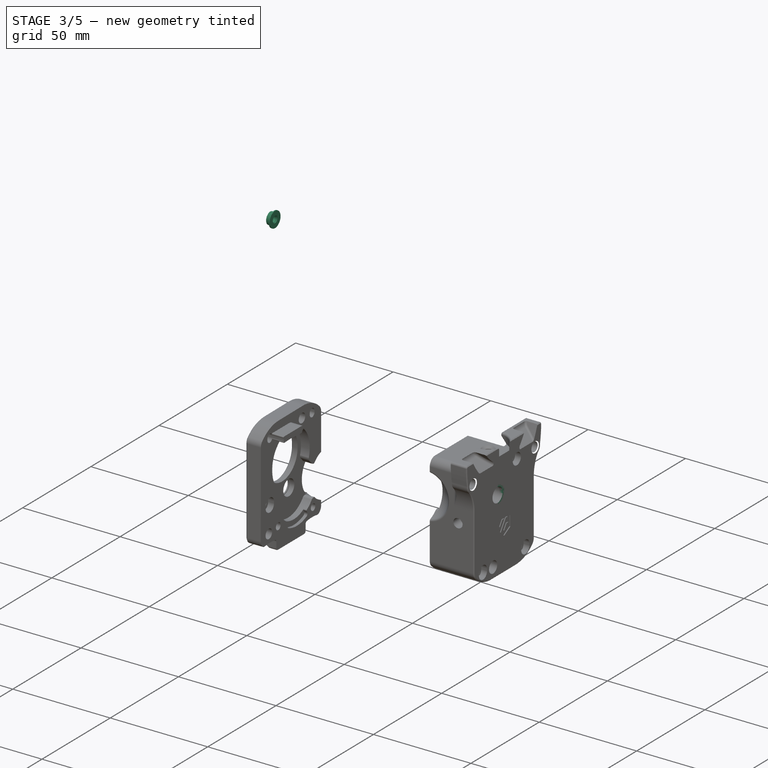
[diagram: stage 3 of 5 — iso view after this stage's code; geometry added in this stage tinted green]
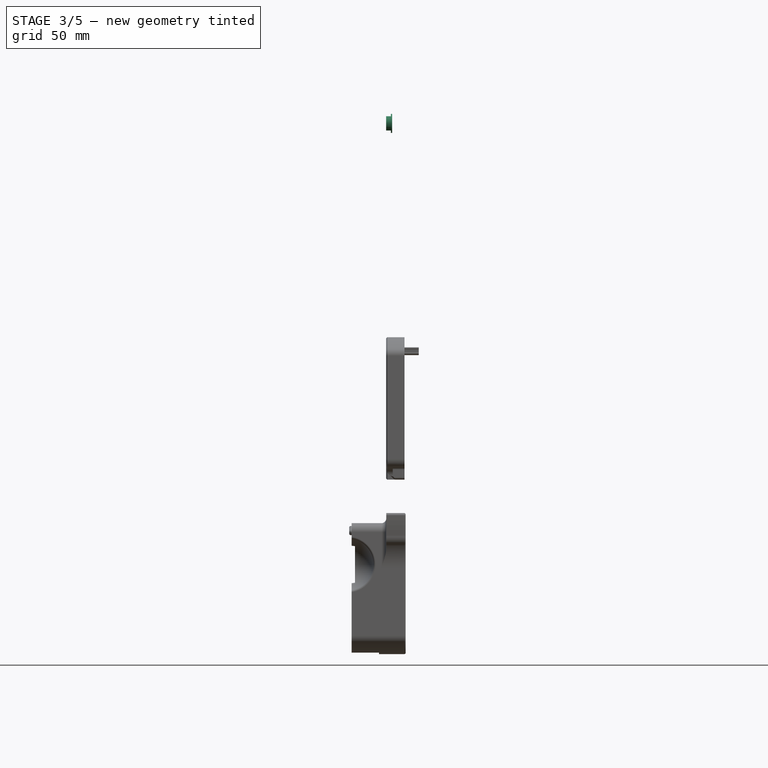
[diagram: stage 3 of 5 — front view after this stage's code; geometry added in this stage tinted green]
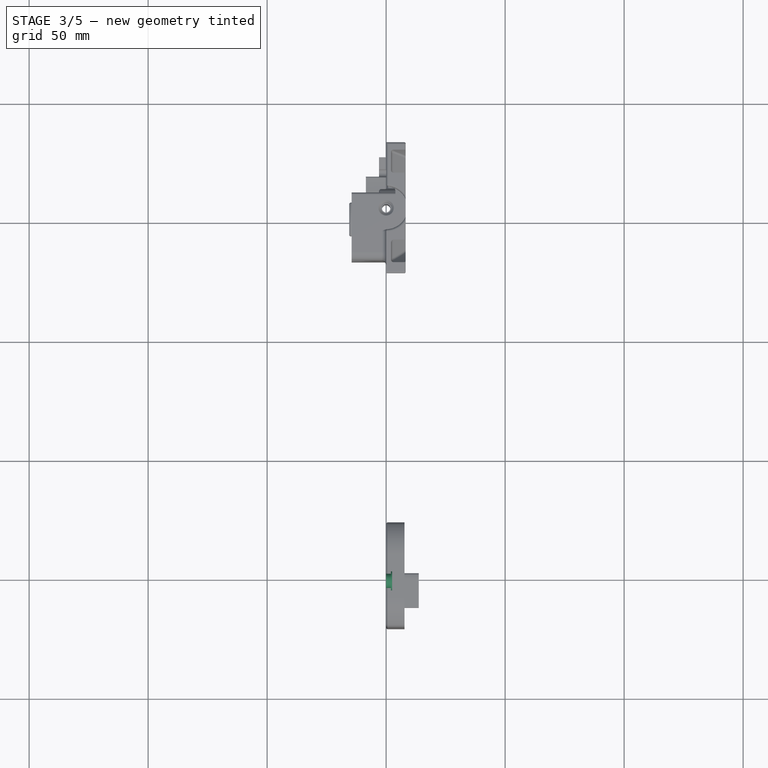
[diagram: stage 3 of 5 — top view after this stage's code; geometry added in this stage tinted green]
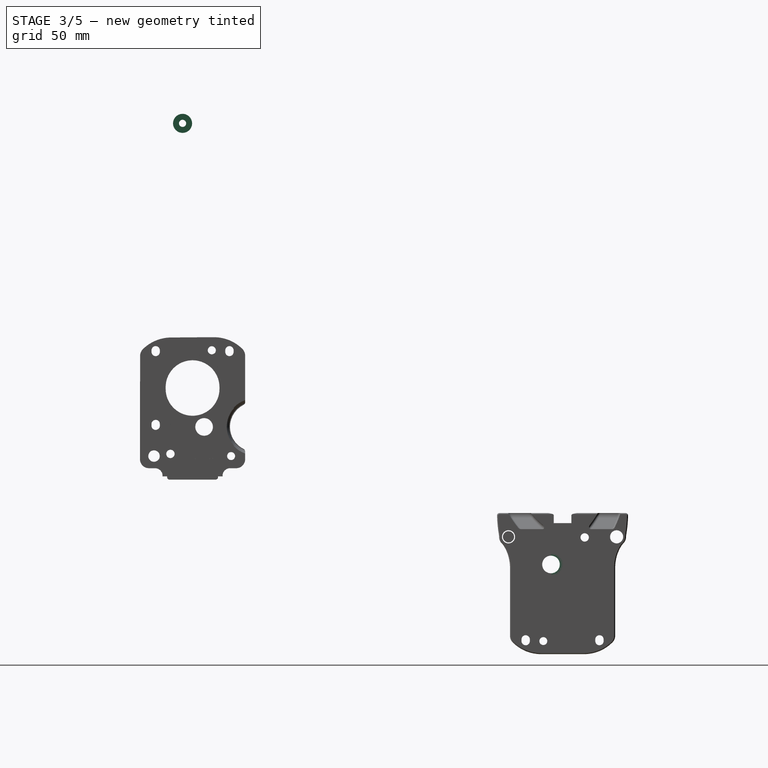
[diagram: stage 3 of 5 — right view after this stage's code; geometry added in this stage tinted green]
FEATURE [PartDesign::Body] Body027  label="MF83_Bearing"
  AutoGroupSolids = false
  ExportMode = 0
  Group = -> [Sketch281,Pad121,Sketch282,Pad122]
  Origin = -> Origin065
  Placement = pos=(5.3,0,0) rot=(0,0,1;0rad)
  Tip = -> Pad122
  TreeRank = 2387
  _ExportChildren = -> [Pad121,Pad122]
  _GroupVersion = 1
FEATURE [Sketcher::SketchObject] Sketch283
  FullyConstrained = false
  MapMode = 5
  Placement = pos=(0,0,0) rot=(0.57735,0.57735,0.57735;2.0944rad)
  Support = -> [YZ_Plane030]
  TreeRank = 2063
  sketch-geometry (2):
    g0: Circle CenterX=-4.2 CenterY=111.2 CenterZ=0 NormalX=0 NormalY=0 NormalZ=1 AngleXU=0 Radius=1.5
    g1: Circle CenterX=-4.2 CenterY=111.2 CenterZ=0 NormalX=0 NormalY=0 NormalZ=1 AngleXU=0 Radius=3
  constraints (3):
    c: Coincident(g1,g0)
    c: Radius(g1) = 3
    c: Radius(g0) = 1.5
FEATURE [PartDesign::Pad] Pad123
  AddSubType = 0
  AlongSketchNormal = false
  CheckUpToFaceLimits = true
  ClaimChildren = false
  Direction = (1,-2e-16,3e-16)
  Fit = 0
  FitJoin = 0
  InnerFit = 0
  InnerFitJoin = 0
  InnerTaperAngle = 0
  InnerTaperAngleRev = 0
  Length = 2
  Length2 = 100
  Linearize = true
  NewSolid = false
  Placement = pos=(0,0,0) rot=(0.57735,0.57735,0.57735;2.0944rad)
  Profile = -> Sketch283
  Suppress = false
  TreeRank = 2065
  Type = 0
  _ProfileBasedVersion = 1
FEATURE [Sketcher::SketchObject] Sketch284
  ExternalGeometry = -> [Pad123]
  FullyConstrained = false
  MapMode = 5
  Placement = pos=(2,-4e-16,4e-16) rot=(0.57735,0.57735,0.57735;2.0944rad)
  Support = -> [Pad123]
  TreeRank = 2066
  sketch-geometry (2):
    g0: Circle CenterX=-4.2 CenterY=111.2 CenterZ=0 NormalX=0 NormalY=0 NormalZ=1 AngleXU=0 Radius=1.69747
    g1: Circle CenterX=-4.2 CenterY=111.2 CenterZ=0 NormalX=0 NormalY=0 NormalZ=1 AngleXU=0 Radius=4
  constraints (3):
    c: Coincident(g0,g-3)
    c: Coincident(g1,g0)
    c: Radius(g1) = 4
FEATURE [PartDesign::Pad] Pad124
  AddSubType = 0
  AlongSketchNormal = false
  BaseFeature = -> Pad123
  CheckUpToFaceLimits = true
  ClaimChildren = false
  Direction = (1,-4e-16,4e-16)
  Fit = 0
  FitJoin = 0
  InnerFit = 0
  InnerFitJoin = 0
  InnerTaperAngle = 0
  InnerTaperAngleRev = 0
  Length = 0.5
  Length2 = 100
  Linearize = true
  NewSolid = false
  Placement = pos=(0,0,0) rot=(0.57735,0.57735,0.57735;2.0944rad)
  Profile = -> Sketch284
  Suppress = false
  TreeRank = 2298
  Type = 0
  _ProfileBasedVersion = 1
FEATURE [Sketcher::SketchObject] Sketch001
  ExternalGeometry = -> [Pocket062]
  FullyConstrained = true
  MapMode = 5
  Placement = pos=(0,-5.5958e-12,-111.826) rot=(1,0,0;3.14159rad)
  Support = -> [Pocket062]
  TreeRank = 586
  expr: Constraints[1] = <<ss>>.fil_size / 2 + 0.25
  sketch-geometry (1):
    g0: Circle CenterX=2.14578e-06 CenterY=-155.464 CenterZ=0 NormalX=0 NormalY=0 NormalZ=1 AngleXU=0 Radius=1.75
  constraints (2):
    c: Coincident(g0,g-3)
    c: Radius(g0) = 1.75
FEATURE [PartDesign::Pocket] Pocket001
  AddSubType = 1
  BaseFeature = -> Pocket062
  CheckUpToFaceLimits = true
  ClaimChildren = false
  Fit = 0
  FitJoin = 0
  InnerFit = 0
  InnerFitJoin = 0
  InnerTaperAngle = 0
  InnerTaperAngleRev = 0
  Length = 5
  Length2 = 100
  Linearize = true
  NewSolid = false
  Profile = -> Sketch001
  Suppress = false
  TreeRank = 587
  Type = 1
  _ProfileBasedVersion = 1
  _Version = 1
FEATURE [Sketcher::SketchObject] Sketch002
  ExternalGeometry = -> [Pocket001]
  FullyConstrained = true
  MapMode = 5
  Placement = pos=(0,-5.5958e-12,-111.826) rot=(1,0,0;3.14159rad)
  Support = -> [Pocket001]
  TreeRank = 588
  sketch-geometry (1):
    g0: Circle CenterX=2.14578e-06 CenterY=-155.464 CenterZ=0 NormalX=0 NormalY=0 NormalZ=1 AngleXU=0 Radius=2
  constraints (2):
    c: Coincident(g0,g-3)
    c: Radius(g0) = 2
FEATURE [PartDesign::Pocket] Pocket002
  AddSubType = 1
  BaseFeature = -> Pocket001
  CheckUpToFaceLimits = true
  ClaimChildren = false
  Fit = 0
  FitJoin = 0
  InnerFit = 0
  InnerFitJoin = 0
  InnerTaperAngle = 0
  InnerTaperAngleRev = 0
  Length = 16
  Length2 = 100
  Linearize = true
  NewSolid = false
  Profile = -> Sketch002
  Suppress = false
  TreeRank = 589
  Type = 0
  _ProfileBasedVersion = 1
  _Version = 1
FEATURE [Sketcher::SketchObject] Sketch285
  FullyConstrained = true
  MapMode = 5
  Placement = pos=(8.2,-4.3e-15,0) rot=(0.57735,0.57735,0.57735;2.0944rad)
  Support = -> [Pocket002]
  TreeRank = 1957
  sketch-geometry (1):
    g0: Circle CenterX=151.1 CenterY=-74.15 CenterZ=0 NormalX=0 NormalY=0 NormalZ=1 AngleXU=0 Radius=4.7
  constraints (3):
    c: Radius(g0) = 4.7
    c: DistanceX(g0) = 151.1
    c: DistanceY(g0) = -74.15
FEATURE [PartDesign::Pad] Pad125
  AddSubType = 0
  AlongSketchNormal = false
  BaseFeature = -> Pocket002
  CheckUpToFaceLimits = true
  ClaimChildren = false
  Direction = (1,-4e-16,0)
  Fit = 0
  FitJoin = 0
  InnerFit = 0
  InnerFitJoin = 0
  InnerTaperAngle = 0
  InnerTaperAngleRev = 0
  Length = 4.8
  Length2 = 100
  Linearize = true
  NewSolid = false
  Profile = -> Sketch285
  Reversed = true
  Suppress = false
  TreeRank = 1958
  Type = 0
  _ProfileBasedVersion = 1
FEATURE [Sketcher::SketchObject] Sketch278
  FullyConstrained = true
  MapMode = 5
  Placement = pos=(-14.5,7.5e-15,0) rot=(-0.57735,0.57735,0.57735;4.18879rad)
  Support = -> [Pad125]
  TreeRank = 1967
  expr: Constraints[1] = -151.1 + <<ss>>.gap_x
  expr: Constraints[2] = -74.15000000000001 + <<ss>>.gap_y
  sketch-geometry (1):
    g0: Circle CenterX=-150.6 CenterY=-74.15 CenterZ=0 NormalX=0 NormalY=0 NormalZ=1 AngleXU=0 Radius=4.1
  constraints (3):
    c: Radius(g0) = 4.1
    c: DistanceX(g0) = -150.6
    c: DistanceY(g0) = -74.15
FEATURE [PartDesign::Pocket] Pocket072
  AddSubType = 1
  BaseFeature = -> Pad125
  CheckUpToFaceLimits = true
  ClaimChildren = false
  Fit = 0
  FitJoin = 0
  InnerFit = 0
  InnerFitJoin = 0
  InnerTaperAngle = 0
  InnerTaperAngleRev = 0
  Length = 21
  Length2 = 100
  Linearize = true
  NewSolid = false
  Profile = -> Sketch278
  Suppress = false
  TreeRank = 1968
  Type = 0
  _ProfileBasedVersion = 1
  _Version = 1
FEATURE [Sketcher::SketchObject] Sketch274
  FullyConstrained = true
  MapMode = 5
  Placement = pos=(-14.5,7.5e-15,0) rot=(-0.57735,0.57735,0.57735;4.18879rad)
  Support = -> [Pocket072]
  TreeRank = 1959
  expr: Constraints[1] = -151.1 + <<ss>>.gap_x
  expr: Constraints[2] = -74.15000000000001 - <<ss>>.gap_y
  sketch-geometry (1):
    g0: Circle CenterX=-150.6 CenterY=-74.15 CenterZ=0 NormalX=0 NormalY=0 NormalZ=1 AngleXU=0 Radius=13.75
  constraints (3):
    c: Radius(g0) = 13.75
    c: DistanceX(g0) = -150.6
    c: DistanceY(g0) = -74.15
FEATURE [PartDesign::Pocket] Pocket063
  AddSubType = 1
  BaseFeature = -> Pocket072
  CheckUpToFaceLimits = true
  ClaimChildren = false
  Fit = 0
  FitJoin = 0
  InnerFit = 0
  InnerFitJoin = 0
  InnerTaperAngle = 0
  InnerTaperAngleRev = 0
  Length = 0
  Length2 = 100
  Linearize = true
  NewSolid = false
  Profile = -> Sketch274
  Suppress = false
  TreeRank = 1970
  Type = 3
  UpToFace = -> Pocket072 [Face4]
  _ProfileBasedVersion = 1
  _Version = 1
FEATURE [Sketcher::SketchObject] Sketch275
  FullyConstrained = true
  MapMode = 5
  Placement = pos=(-14.5,7.5e-15,0) rot=(-0.57735,0.57735,0.57735;4.18879rad)
  Support = -> [Pocket063]
  TreeRank = 1961
  expr: Constraints[1] = -151.1 + <<ss>>.gap_x
  expr: Constraints[2] = -74.15000000000001 - <<ss>>.gap_y
  sketch-geometry (1):
    g0: Circle CenterX=-150.6 CenterY=-74.15 CenterZ=0 NormalX=0 NormalY=0 NormalZ=1 AngleXU=0 Radius=6.5
  constraints (3):
    c: Radius(g0) = 6.5
    c: DistanceX(g0) = -150.6
    c: DistanceY(g0) = -74.15
FEATURE [PartDesign::Pocket] Pocket064
  AddSubType = 1
  BaseFeature = -> Pocket063
  CheckUpToFaceLimits = true
  ClaimChildren = false
  Fit = 0
  FitJoin = 0
  InnerFit = 0
  InnerFitJoin = 0
  InnerTaperAngle = 0
  InnerTaperAngleRev = 0
  Length = 0
  Length2 = 100
  Linearize = true
  NewSolid = false
  Profile = -> Sketch275
  Suppress = false
  TreeRank = 1971
  Type = 3
  UpToFace = -> Pocket063 [Face74]
  _ProfileBasedVersion = 1
  _Version = 1
FEATURE [Sketcher::SketchObject] Sketch276
  FullyConstrained = false
  MapMode = 5
  Placement = pos=(-14.5,7.5e-15,0) rot=(-0.57735,0.57735,0.57735;4.18879rad)
  Support = -> [Pocket064]
  TreeRank = 1963
  expr: Constraints[15] = -151.1 + <<ss>>.gap_x
  expr: Constraints[16] = -74.15000000000001 - <<ss>>.gap_y
  sketch-geometry (6):
    g0: ArcOfCircle CenterX=-150.6 CenterY=-74.15 CenterZ=0 NormalX=0 NormalY=0 NormalZ=1 AngleXU=0 Radius=6 StartAngle=4.75058 EndAngle=7.81579
    g1: LineSegment StartX=-154.569 StartY=-71.805 StartZ=0 EndX=-154.569 EndY=-76.495 EndZ=0
    g2: ArcOfCircle CenterX=-150.6 CenterY=-74.15 CenterZ=0 NormalX=0 NormalY=0 NormalZ=1 AngleXU=0 Radius=4.61 StartAngle=2.14925 EndAngle=2.60795
    g3: ArcOfCircle CenterX=-150.6 CenterY=-74.15 CenterZ=0 NormalX=0 NormalY=0 NormalZ=1 AngleXU=0 Radius=4.61 StartAngle=3.67524 EndAngle=4.13394
    g4: ArcOfCircle CenterX=-150.222 CenterY=-71.184 CenterZ=0 NormalX=0 NormalY=0 NormalZ=1 AngleXU=0 Radius=3.03325 StartAngle=1.61995 EndAngle=2.84243
    g5: ArcOfCircle CenterX=-150.222 CenterY=-77.116 CenterZ=0 NormalX=0 NormalY=0 NormalZ=1 AngleXU=0 Radius=3.03325 StartAngle=3.44076 EndAngle=4.66324
  constraints (18):
    c: Radius(g0) = 6
    c: Coincident(g2,g0)
    c: Coincident(g2,g1)
    c: Coincident(g3,g0)
    c: Coincident(g3,g1)
    c: Coincident(g4,g2)
    c: Coincident(g5,g3)
    c: Coincident(g0,g4)
    c: Coincident(g0,g5)
    c: DistanceY(g3,g2) = 7.72
    c: DistanceY(g1,g1) = 4.69
    c: Vertical(g2,g3)
    c: Vertical(g1,g1)
    c: Equal(g5,g4)
    c: Equal(g3,g2)
    c: DistanceX(g0) = -150.6
    c: DistanceY(g0) = -74.15
    c: Radius(g3) = 4.61
FEATURE [PartDesign::Pocket] Pocket065
  AddSubType = 1
  BaseFeature = -> Pocket064
  CheckUpToFaceLimits = true
  ClaimChildren = false
  Fit = 0
  FitJoin = 0
  InnerFit = 0
  InnerFitJoin = 0
  InnerTaperAngle = 0
  InnerTaperAngleRev = 0
  Length = 0
  Length2 = 100
  Linearize = true
  NewSolid = false
  Profile = -> Sketch276
  Suppress = false
  TreeRank = 1972
  Type = 3
  UpToFace = -> Pocket064 [Face79]
  _ProfileBasedVersion = 1
  _Version = 1
FEATURE [Sketcher::SketchObject] Sketch277
  FullyConstrained = true
  MapMode = 5
  Placement = pos=(-14.5,7.5e-15,0) rot=(-0.57735,0.57735,0.57735;4.18879rad)
  Support = -> [Pocket064]
  TreeRank = 1965
  expr: Constraints[1] = -151.1 + <<ss>>.gap_x
  expr: Constraints[2] = -74.15000000000001 - <<ss>>.gap_y
  sketch-geometry (1):
    g0: Circle CenterX=-150.6 CenterY=-74.15 CenterZ=0 NormalX=0 NormalY=0 NormalZ=1 AngleXU=0 Radius=3.7
  constraints (3):
    c: Radius(g0) = 3.7
    c: DistanceX(g0) = -150.6
    c: DistanceY(g0) = -74.15
FEATURE [PartDesign::Pocket] Pocket066
  AddSubType = 1
  BaseFeature = -> Pocket065
  CheckUpToFaceLimits = true
  ClaimChildren = false
  Fit = 0
  FitJoin = 0
  InnerFit = 0
  InnerFitJoin = 0
  InnerTaperAngle = 0
  InnerTaperAngleRev = 0
  Length = 5
  Length2 = 100
  Linearize = true
  NewSolid = false
  Profile = -> Sketch277
  Suppress = false
  TreeRank = 1973
  Type = 1
  _ProfileBasedVersion = 1
  _Version = 1
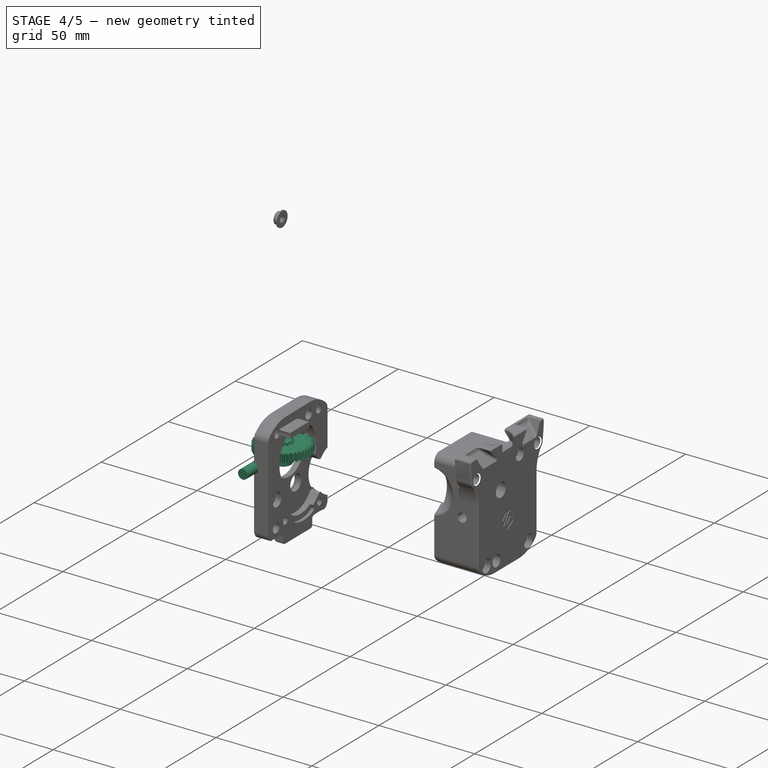
[diagram: stage 4 of 5 — iso view after this stage's code; geometry added in this stage tinted green]
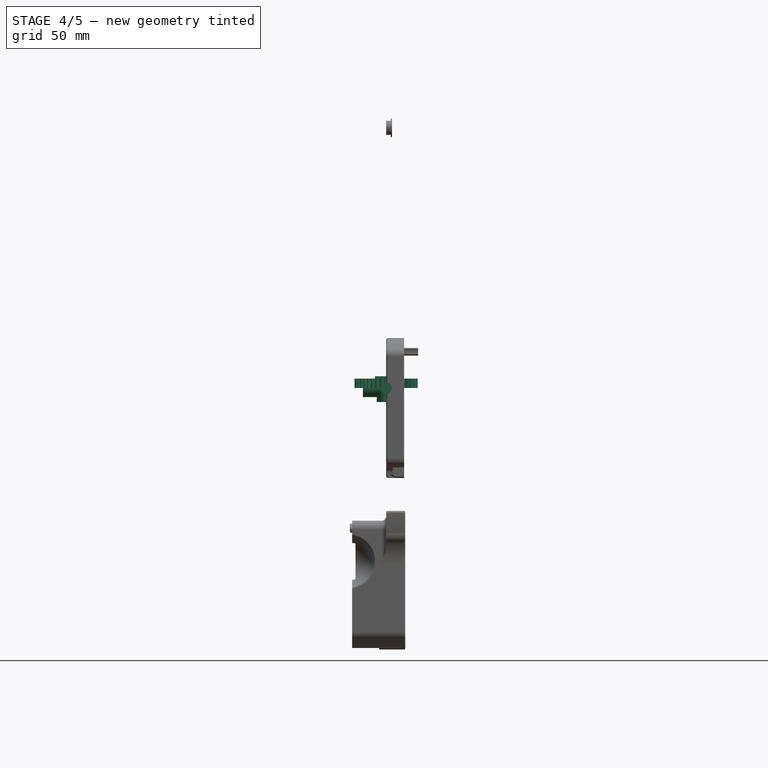
[diagram: stage 4 of 5 — front view after this stage's code; geometry added in this stage tinted green]
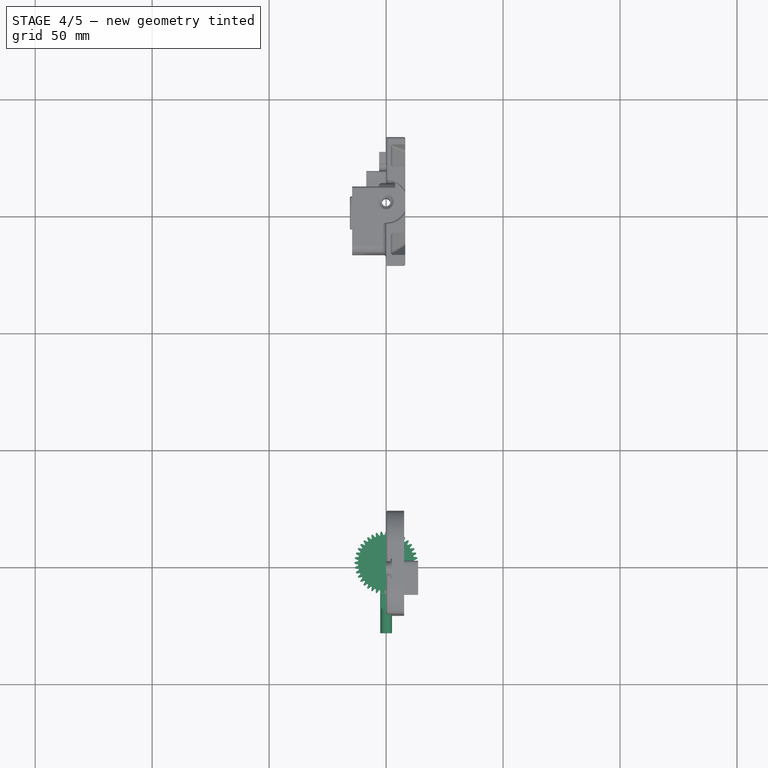
[diagram: stage 4 of 5 — top view after this stage's code; geometry added in this stage tinted green]
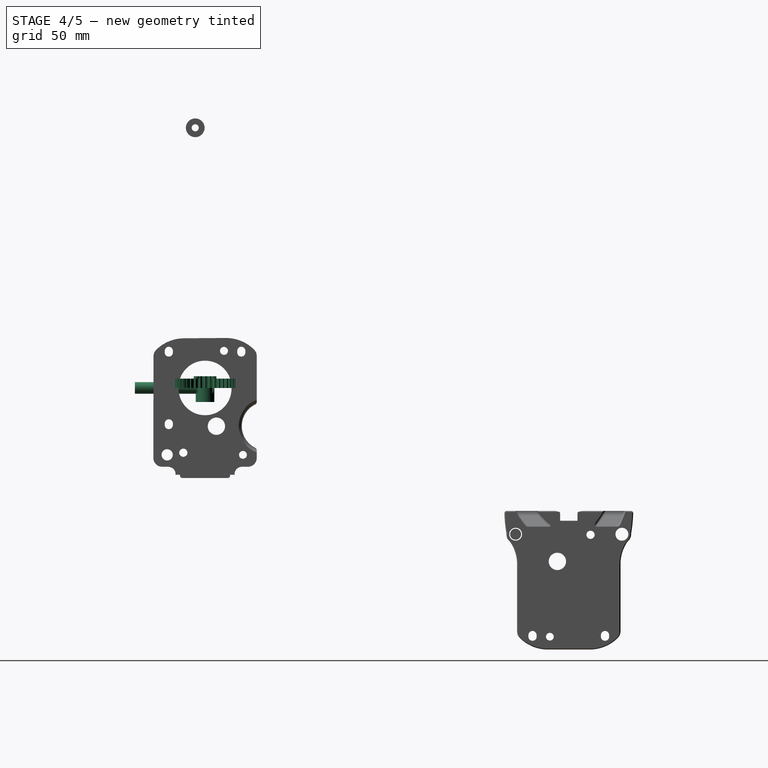
[diagram: stage 4 of 5 — right view after this stage's code; geometry added in this stage tinted green]
FEATURE [PartDesign::Body] Body022  label="MR85:2"
  AutoGroupSolids = false
  ExportMode = 0
  Group = -> [Sketch259,Pad114]
  Origin = -> Origin060
  Placement = pos=(28.4,4.96,111.18) rot=(0,0,1;0rad)
  Tip = -> Pad114
  TreeRank = 2384
  _ExportChildren = -> [Pad114]
  _GroupVersion = 1
FEATURE [Sketcher::SketchObject] Sketch260
  FullyConstrained = false
  MapMode = 5
  Placement = pos=(0,0,0) rot=(1,0,0;1.5708rad)
  Support = -> [XZ_Plane009]
  TreeRank = 15
  sketch-geometry (1):
    g0: Circle CenterX=0 CenterY=-3e-06 CenterZ=0 NormalX=0 NormalY=0 NormalZ=1 AngleXU=0 Radius=2.5
  constraints (1):
    c: Radius(g0) = 2.5
FEATURE [PartDesign::Pad] Pad115
  AddSubType = 0
  AlongSketchNormal = false
  CheckUpToFaceLimits = true
  ClaimChildren = false
  Direction = (0,-1,-2e-16)
  Fit = 0
  FitJoin = 0
  InnerFit = 0
  InnerFitJoin = 0
  InnerTaperAngle = 0
  InnerTaperAngleRev = 0
  Length = 30
  Length2 = 100
  Linearize = true
  NewSolid = false
  Placement = pos=(0,0,0) rot=(1,0,0;1.5708rad)
  Profile = -> Sketch260
  Suppress = false
  TreeRank = 16
  Type = 0
  _ProfileBasedVersion = 1
FEATURE [PartDesign::Body] Body023  label="5mmShim"
  AutoGroupSolids = false
  ExportMode = 0
  Group = -> [Sketch263,Pad117]
  Origin = -> Origin061
  Placement = pos=(-41.6,0.6,0) rot=(0,0,1;0rad)
  Tip = -> Pad117
  TreeRank = 2385
  _ExportChildren = -> [Pad117]
  _GroupVersion = 1
FEATURE [Sketcher::SketchObject] Sketch264
  FullyConstrained = true
  MapMode = 5
  Placement = pos=(0,0,0) rot=(0.537067,0.596473,0.596473;2.15587rad)
  Support = -> [DatumPlane]
  TreeRank = 818
  sketch-geometry (1):
    g0: Circle CenterX=0 CenterY=-2.5 CenterZ=0 NormalX=0 NormalY=0 NormalZ=1 AngleXU=0 Radius=1
  constraints (3):
    c: PointOnObject(g0,g-2)
    c: Radius(g0) = 1
    c: DistanceY(g0,g-1) = 2.5
FEATURE [Sketcher::SketchObject] Sketch265
  FullyConstrained = true
  MapMode = 5
  Support = -> [XY_Plane026]
  TreeRank = 1091
  sketch-geometry (10):
    g0: LineSegment StartX=-9.92737 StartY=3.9 StartZ=0 EndX=-1.02737 EndY=3.9 EndZ=0
    g1: LineSegment StartX=2.63044 StartY=3.9 StartZ=0 EndX=2.63044 EndY=3 EndZ=0
    g2: LineSegment StartX=-9.92737 StartY=3 StartZ=0 EndX=-9.92737 EndY=3.9 EndZ=0
    g3: ArcOfCircle CenterX=0.301535 CenterY=5.39466 CenterZ=0 NormalX=0 NormalY=0 NormalZ=1 AngleXU=0 Radius=2 StartAngle=3.98562 EndAngle=5.43915
    g4: LineSegment StartX=1.63044 StartY=3.9 StartZ=0 EndX=2.63044 EndY=3.9 EndZ=0
    g5: LineSegment StartX=-7.92737 StartY=1.6 StartZ=0 EndX=0.630445 EndY=1.6 EndZ=0
    g6: LineSegment StartX=0.630445 StartY=1.6 StartZ=0 EndX=0.630445 EndY=3 EndZ=0
    g7: LineSegment StartX=0.630445 StartY=3 StartZ=0 EndX=2.63044 EndY=3 EndZ=0
    g8: LineSegment StartX=-9.92737 StartY=3 StartZ=0 EndX=-7.92737 EndY=3 EndZ=0
    g9: LineSegment StartX=-7.92737 StartY=3 StartZ=0 EndX=-7.92737 EndY=1.6 EndZ=0
  constraints (31):
    c: Coincident(g4,g1)
    c: Coincident(g2,g0)
    c: Horizontal(g0)
    c: Vertical(g1)
    c: Vertical(g2)
    c: Coincident(g4,g3)
    c: Horizontal(g4)
    c: Horizontal(g5)
    c: Vertical(g6)
    c: Coincident(g7,g6)
    c: Horizontal(g7)
    c: DistanceX(g7,g7) = 2
    c: Horizontal(g8)
    c: Coincident(g8,g9)
    c: Vertical(g9)
    c: Equal(g8,g7)
    c: Coincident(g6,g5)
    c: Coincident(g1,g7)
    c: Coincident(g2,g8)
    c: Coincident(g9,g5)
    c: DistanceY(g1) = 3
    c: Horizontal(g8,g6)
    c: Equal(g2,g1)
    c: Coincident(g3,g0)
    c: DistanceX(g0) = -9.92737
    c: DistanceY(g0) = 3.9
    c: DistanceX(g1) = 2.63044
    c: Radius(g3) = 2
    c: DistanceX(g0,g0) = 8.9
    c: DistanceY(g5) = 1.6
    c: DistanceX(g4,g4) = 1
FEATURE [PartDesign::Revolution] Revolution
  AddSubType = 0
  Angle = 360
  Axis = (1,0,0)
  Base = (0,0,0)
  ClaimChildren = false
  Fit = 0
  FitJoin = 0
  InnerFit = 0
  InnerFitJoin = 0
  Linearize = true
  NewSolid = false
  Profile = -> Sketch265
  ReferenceAxis = -> X_Axis026
  Suppress = false
  TreeRank = 1092
  _ProfileBasedVersion = 1
FEATURE [PartDesign::Body] Body024  label="roller"
  AutoGroupSolids = false
  ExportMode = 0
  Group = -> [Sketch265,Revolution]
  Origin = -> Origin062
  Placement = pos=(0,-4.2,111.2) rot=(0,0,1;0rad)
  Tip = -> Revolution
  TreeRank = 2386
  _ExportChildren = -> [Revolution]
  _GroupVersion = 1
FEATURE [Sketcher::SketchObject] Sketch280
  FullyConstrained = true
  MapMode = 5
  Placement = pos=(-1e-16,0,3) rot=(0,1,0;0.10472rad)
  Support = -> [DatumPlane003]
  TreeRank = 2051
  sketch-geometry (4):
    g0: LineSegment StartX=-3.5 StartY=-7.5 StartZ=0 EndX=3.5 EndY=-7.5 EndZ=0
    g1: LineSegment StartX=3.5 StartY=-7.5 StartZ=0 EndX=3.5 EndY=-19.5 EndZ=0
    g2: LineSegment StartX=3.5 StartY=-19.5 StartZ=0 EndX=-3.5 EndY=-19.5 EndZ=0
    g3: LineSegment StartX=-3.5 StartY=-19.5 StartZ=0 EndX=-3.5 EndY=-7.5 EndZ=0
  constraints (11):
    c: Coincident(g0,g1)
    c: Coincident(g1,g2)
    c: Coincident(g2,g3)
    c: Coincident(g3,g0)
    c: Horizontal(g2)
    c: Vertical(g1)
    c: Vertical(g3)
    c: Symmetric(g0,g0,g-2)
    c: DistanceX(g0,g0) = 7
    c: DistanceY(g1,g1) = 12
    c: DistanceY(g0) = -7.5
FEATURE [PartDesign::Pocket] Pocket071
  AddSubType = 1
  BaseFeature = -> Pad115
  CheckUpToFaceLimits = true
  ClaimChildren = false
  Fit = 0
  FitJoin = 0
  InnerFit = 0
  InnerFitJoin = 0
  InnerTaperAngle = 0
  InnerTaperAngleRev = 0
  Length = 2
  Length2 = 100
  Linearize = true
  NewSolid = false
  Placement = pos=(0,0,0) rot=(1,0,0;1.5708rad)
  Profile = -> Sketch280
  Suppress = false
  TreeRank = 2052
  Type = 0
  _ProfileBasedVersion = 1
  _Version = 1
FEATURE [PartDesign::Body] Body008  label="M5Rod"
  AutoGroupSolids = false
  ExportMode = 0
  Group = -> [Sketch260,Pad115,DatumPlane003,Sketch280,Pocket071]
  Origin = -> Origin050
  Placement = pos=(-21.4,4.94,111.2) rot=(0.052015,-0.052015,0.997291;1.57354rad)
  Tip = -> Pocket071
  TreeRank = 2381
  _ExportChildren = -> [Pad115,DatumPlane003,Pocket071]
  _GroupVersion = 1
FEATURE [Sketcher::SketchObject] Sketch281
  FullyConstrained = false
  MapMode = 5
  Placement = pos=(0,0,0) rot=(0.57735,0.57735,0.57735;2.0944rad)
  Support = -> [YZ_Plane029]
  TreeRank = 2063
  sketch-geometry (2):
    g0: Circle CenterX=-4.2 CenterY=111.2 CenterZ=0 NormalX=0 NormalY=0 NormalZ=1 AngleXU=0 Radius=1.5
    g1: Circle CenterX=-4.2 CenterY=111.2 CenterZ=0 NormalX=0 NormalY=0 NormalZ=1 AngleXU=0 Radius=3
  constraints (3):
    c: Coincident(g1,g0)
    c: Radius(g1) = 3
    c: Radius(g0) = 1.5
FEATURE [PartDesign::Pad] Pad121
  AddSubType = 0
  AlongSketchNormal = false
  CheckUpToFaceLimits = true
  ClaimChildren = false
  Direction = (1,-2e-16,3e-16)
  Fit = 0
  FitJoin = 0
  InnerFit = 0
  InnerFitJoin = 0
  InnerTaperAngle = 0
  InnerTaperAngleRev = 0
  Length = 2
  Length2 = 100
  Linearize = true
  NewSolid = false
  Placement = pos=(0,0,0) rot=(0.57735,0.57735,0.57735;2.0944rad)
  Profile = -> Sketch281
  Suppress = false
  TreeRank = 2065
  Type = 0
  _ProfileBasedVersion = 1
FEATURE [Sketcher::SketchObject] Sketch282
  ExternalGeometry = -> [Pad121]
  FullyConstrained = false
  MapMode = 5
  Placement = pos=(2,-4e-16,4e-16) rot=(0.57735,0.57735,0.57735;2.0944rad)
  Support = -> [Pad121]
  TreeRank = 2066
  sketch-geometry (2):
    g0: Circle CenterX=-4.2 CenterY=111.2 CenterZ=0 NormalX=0 NormalY=0 NormalZ=1 AngleXU=0 Radius=1.69747
    g1: Circle CenterX=-4.2 CenterY=111.2 CenterZ=0 NormalX=0 NormalY=0 NormalZ=1 AngleXU=0 Radius=4
  constraints (3):
    c: Coincident(g0,g-3)
    c: Coincident(g1,g0)
    c: Radius(g1) = 4
FEATURE [PartDesign::FeaturePython] involutegear  # WARN: FeaturePython — macro-defined, semantics opaque (R4)
  AttacherType = Attacher::AttachEngine3D
  NewSolid = false
  Suppress = false
  TreeRank = 2249
  backlash = 0
  beta = 0
  clearance = 0
  da = 9.728
  df = 7.04
  double_helix = false
  dw = 8.32
  head = 0.1
  height = 5
  module = 0.64
  numpoints = 6
  pressure_angle = 20
  properties_from_tool = false
  reversed_backlash = false
  shift = 0
  simple = false
  teeth = 13
  transverse_pitch = 2.01062
  undercut = false
FEATURE [PartDesign::Body] Body002  label="SmallGear"
  AutoGroupSolids = false
  ExportMode = 0
  Group = -> [involutegear,Sketch246,Pocket054]
  Origin = -> Origin039
  Placement = pos=(-18,0,127.85) rot=(0,1,0;1.5708rad)
  Tip = -> Pocket054
  TreeRank = 2380
  _ExportChildren = -> [involutegear,Pocket054]
  _GroupVersion = 1
FEATURE [PartDesign::FeaturePython] involutegear001  # WARN: FeaturePython — macro-defined, semantics opaque (R4)
  AttacherType = Attacher::AttachEngine3D
  NewSolid = false
  Suppress = false
  TreeRank = 0
  backlash = 0
  beta = 0
  clearance = 0.25
  da = 27.008
  df = 24
  double_helix = false
  dw = 25.6
  head = 0.1
  height = 4
  module = 0.64
  numpoints = 6
  pressure_angle = 20
  properties_from_tool = false
  reversed_backlash = false
  shift = 0
  simple = false
  teeth = 40
  transverse_pitch = 2.01062
  undercut = false
FEATURE [PartDesign::Pad] Pad118
  AddSubType = 0
  AlongSketchNormal = false
  BaseFeature = -> involutegear001
  CheckUpToFaceLimits = true
  ClaimChildren = false
  Direction = (0,-1e-16,-1)
  Fit = 0
  FitJoin = 0
  InnerFit = 0
  InnerFitJoin = 0
  InnerTaperAngle = 0
  InnerTaperAngleRev = 0
  Length = 6
  Length2 = 100
  Linearize = true
  NewSolid = false
  Profile = -> Sketch261
  Suppress = false
  TreeRank = 1365
  Type = 0
  _ProfileBasedVersion = 1
FEATURE [Sketcher::SketchObject] Sketch244
  FullyConstrained = true
  MapMode = 5
  Placement = pos=(0,0,4) rot=(0,0,1;0rad)
  Support = -> [Pad118]
  TreeRank = 1364
  sketch-geometry (1):
    g0: Circle CenterX=0 CenterY=0 CenterZ=0 NormalX=0 NormalY=0 NormalZ=1 AngleXU=0 Radius=2.5
  constraints (2):
    c: Coincident(g0,g-1)
    c: Radius(g0) = 2.5
FEATURE [PartDesign::Pocket] Pocket
  AddSubType = 1
  BaseFeature = -> Pad118
  CheckUpToFaceLimits = true
  ClaimChildren = false
  Fit = 0
  FitJoin = 0
  InnerFit = 0
  InnerFitJoin = 0
  InnerTaperAngle = 0
  InnerTaperAngleRev = 0
  Length = 5
  Length2 = 100
  Linearize = true
  NewSolid = false
  Profile = -> Sketch244
  Suppress = false
  TreeRank = 1366
  Type = 1
  _ProfileBasedVersion = 1
  _Version = 1
FEATURE [PartDesign::Body] Body001  label="BigGear"
  AutoGroupSolids = false
  ExportMode = 0
  Group = -> [involutegear001,Sketch244,Sketch261,DatumPlane,Sketch264,Pad118,Pocket,Pocket061]
  Origin = -> Origin038
  Placement = pos=(-30.033,4.94002,111.2) rot=(0.052015,-0.997291,-0.052015;1.57354rad)
  Tip = -> Pocket061
  TreeRank = 2379
  _ExportChildren = -> [involutegear001,DatumPlane,Pad118,Pocket,Pocket061]
  _GroupVersion = 1
FEATURE [PartDesign::Pad] Pad122
  AddSubType = 0
  AlongSketchNormal = false
  BaseFeature = -> Pad121
  CheckUpToFaceLimits = true
  ClaimChildren = false
  Direction = (1,-4e-16,4e-16)
  Fit = 0
  FitJoin = 0
  InnerFit = 0
  InnerFitJoin = 0
  InnerTaperAngle = 0
  InnerTaperAngleRev = 0
  Length = 0.5
  Length2 = 100
  Linearize = true
  NewSolid = false
  Placement = pos=(0,0,0) rot=(0.57735,0.57735,0.57735;2.0944rad)
  Profile = -> Sketch282
  Suppress = false
  TreeRank = 2298
  Type = 0
  _ProfileBasedVersion = 1
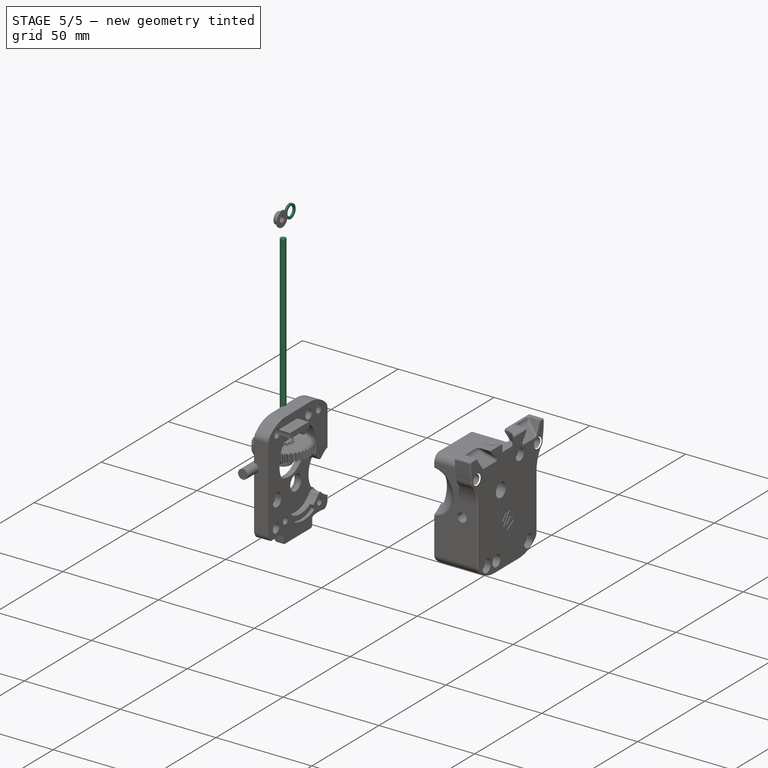
[diagram: stage 5 of 5 — iso view after this stage's code; geometry added in this stage tinted green]
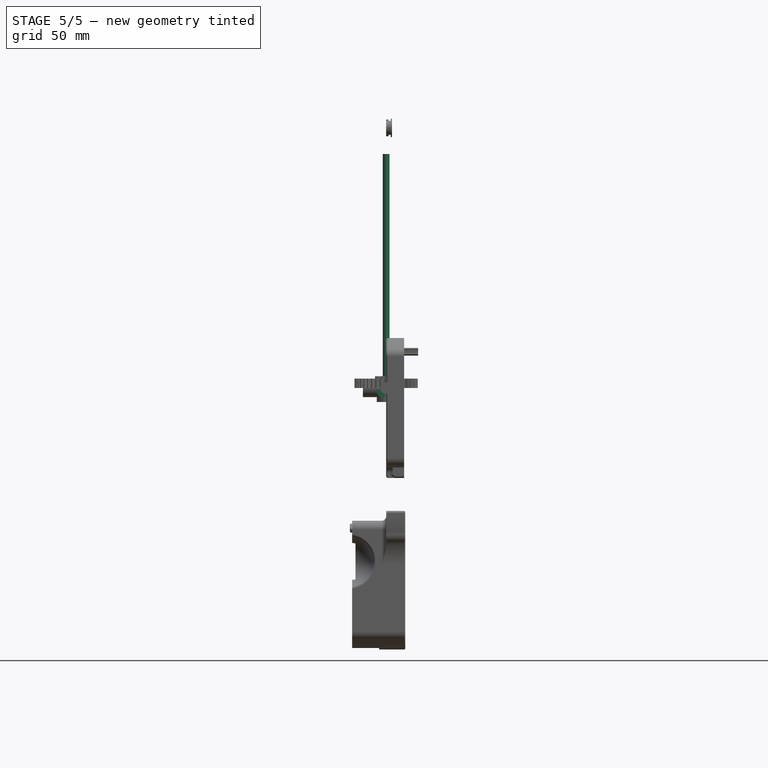
[diagram: stage 5 of 5 — front view after this stage's code; geometry added in this stage tinted green]
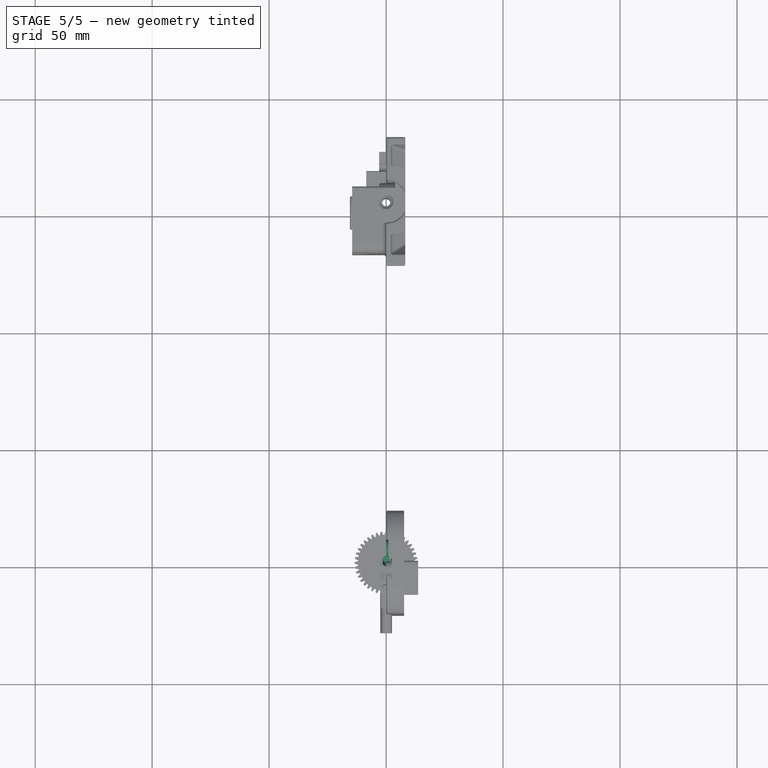
[diagram: stage 5 of 5 — top view after this stage's code; geometry added in this stage tinted green]
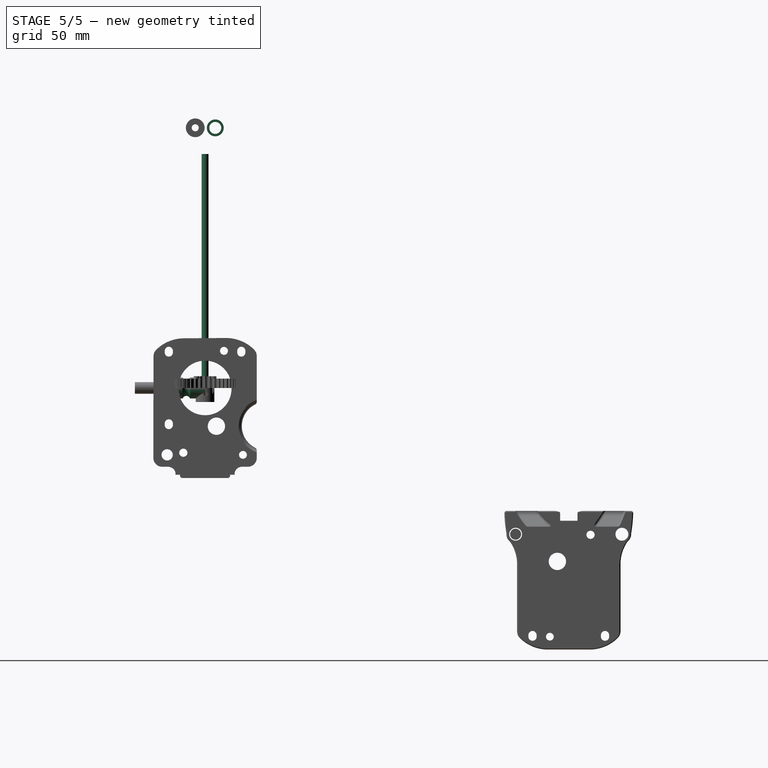
[diagram: stage 5 of 5 — right view after this stage's code; geometry added in this stage tinted green]
FEATURE [PartDesign::Plane] DatumPlane
  AttachmentOffset = pos=(0,0,0) rot=(0,1,0;0.10472rad)
  Length = 29.6795
  MapMode = 5
  MinimumLength = 10
  MinimumWidth = 10
  Placement = pos=(0,0,0) rot=(0.537067,0.596473,0.596473;2.15587rad)
  ResizeMode = 0
  Support = -> [YZ_Plane003]
  TreeRank = 817
  Width = 10
FEATURE [PartDesign::Plane] DatumPlane001
  Length = 10
  MapMode = 4
  MinimumLength = 10
  MinimumWidth = 10
  Placement = pos=(0,0,5) rot=(0,0,1;0rad)
  ResizeMode = 0
  TreeRank = 2254
  Width = 10
FEATURE [PartDesign::Plane] DatumPlane002
  Length = 10
  MinimumLength = 10
  MinimumWidth = 10
  ResizeMode = 0
  TreeRank = 2257
  Width = 10
FEATURE [PartDesign::Plane] DatumPlane003
  AttachmentOffset = pos=(0,0,3) rot=(0,1,0;0.10472rad)
  Length = 10
  MapMode = 5
  MinimumLength = 10
  MinimumWidth = 10
  Placement = pos=(0,0,3) rot=(0,1,0;0.10472rad)
  ResizeMode = 0
  Support = -> [XY_Plane009]
  TreeRank = 2050
  Width = 30
FEATURE [Sketcher::SketchObject] Sketch
  FullyConstrained = true
  MapMode = 5
  Support = -> [XY_Plane001]
  TreeRank = 0
  sketch-geometry (1):
    g0: Circle CenterX=0 CenterY=0 CenterZ=0 NormalX=0 NormalY=0 NormalZ=1 AngleXU=0 Radius=1.45
  constraints (2):
    c: Coincident(g0,g-1)
    c: Radius(g0) = 1.45
FEATURE [PartDesign::Pad] Pad
  AddSubType = 0
  CheckUpToFaceLimits = true
  ClaimChildren = false
  Direction = (0,0,1)
  Fit = 0
  FitJoin = 0
  InnerFit = 0
  InnerFitJoin = 0
  InnerTaperAngle = 0
  InnerTaperAngleRev = 0
  Length = 100
  Length2 = 100
  NewSolid = false
  Profile = -> Sketch
  Suppress = false
  TreeRank = 0
  Type = 0
  _ProfileBasedVersion = 0
FEATURE [PartDesign::Body] Body  label="Filament"
  AutoGroupSolids = false
  ExportMode = 0
  Group = -> [Sketch,Pad]
  Origin = -> Origin037
  Placement = pos=(0.32,0.01,66.6) rot=(0,0,1;0rad)
  Tip = -> Pad
  TreeRank = 2378
  _ExportChildren = -> [Pad]
  _GroupVersion = 1
FEATURE [Sketcher::SketchObject] Sketch240
  FullyConstrained = true
  MapMode = 5
  Placement = pos=(0,0,0) rot=(1,0,0;1.5708rad)
  Support = -> [XZ_Plane011]
  TreeRank = 2252
  sketch-geometry (2):
    g0: Circle CenterX=0 CenterY=0 CenterZ=0 NormalX=0 NormalY=0 NormalZ=1 AngleXU=0 Radius=4.5
    g1: Circle CenterX=0 CenterY=0 CenterZ=0 NormalX=0 NormalY=0 NormalZ=1 AngleXU=0 Radius=2.5
  constraints (4):
    c: Coincident(g0,g-1)
    c: Radius(g0) = 4.5
    c: Coincident(g1,g0)
    c: Radius(g1) = 2.5
FEATURE [PartDesign::Pad] Pad102
  AddSubType = 0
  CheckUpToFaceLimits = true
  ClaimChildren = false
  Direction = (0,-1,-2e-16)
  Fit = 0
  FitJoin = 0
  InnerFit = 0
  InnerFitJoin = 0
  InnerTaperAngle = 0
  InnerTaperAngleRev = 0
  Length = 11
  Length2 = 100
  NewSolid = false
  Placement = pos=(0,0,0) rot=(1,0,0;1.5708rad)
  Profile = -> Sketch240
  Suppress = false
  TreeRank = 2253
  Type = 0
  _ProfileBasedVersion = 0
FEATURE [Sketcher::SketchObject] Sketch241
  FullyConstrained = true
  MapMode = 5
  Placement = pos=(0,0,5) rot=(0,0,1;0rad)
  Support = -> [DatumPlane001]
  TreeRank = 2255
  sketch-geometry (1):
    g0: Circle CenterX=0 CenterY=-1.9 CenterZ=0 NormalX=0 NormalY=0 NormalZ=1 AngleXU=0 Radius=1.5
  constraints (3):
    c: PointOnObject(g0,g-2)
    c: DistanceY(g0,g-1) = 1.9
    c: Radius(g0) = 1.5
FEATURE [PartDesign::Pocket] Pocket047
  AddSubType = 1
  BaseFeature = -> Pad102
  CheckUpToFaceLimits = true
  ClaimChildren = false
  Fit = 0
  FitJoin = 0
  InnerFit = 0
  InnerFitJoin = 0
  InnerTaperAngle = 0
  InnerTaperAngleRev = 0
  Length = 5
  Length2 = 100
  NewSolid = false
  Placement = pos=(0,0,0) rot=(1,0,0;1.5708rad)
  Profile = -> Sketch241
  Suppress = false
  TreeRank = 2256
  Type = 0
  _ProfileBasedVersion = 0
  _Version = 0
FEATURE [Sketcher::SketchObject] Sketch242
  FullyConstrained = true
  MapMode = 5
  Support = -> [DatumPlane002]
  TreeRank = 2258
  sketch-geometry (1):
    g0: Circle CenterX=5 CenterY=-8 CenterZ=0 NormalX=0 NormalY=0 NormalZ=1 AngleXU=0 Radius=1.6
  constraints (3):
    c: DistanceX(g0) = 5
    c: DistanceY(g0) = -8
    c: Radius(g0) = 1.6
FEATURE [PartDesign::Groove] Groove
  AddSubType = 1
  Angle = 360
  Axis = (0,1,0)
  Base = (0,0,0)
  BaseFeature = -> Pocket047
  ClaimChildren = false
  Fit = 0
  FitJoin = 0
  InnerFit = 0
  InnerFitJoin = 0
  NewSolid = false
  Placement = pos=(0,0,0) rot=(1,0,0;1.5708rad)
  Profile = -> Sketch242
  ReferenceAxis = -> Sketch242 [V_Axis]
  Suppress = false
  TreeRank = 2259
  _ProfileBasedVersion = 0
FEATURE [PartDesign::Fillet] Fillet
  AddSubType = 0
  Base = -> Groove [Edge6,Edge2]
  BaseFeature = -> Groove
  NewSolid = false
  Placement = pos=(0,0,0) rot=(1,0,0;1.5708rad)
  Radius = 0.5
  SupportTransform = false
  Suppress = false
  TreeRank = 2260
FEATURE [PartDesign::Body] Body010  label="Hobbed"
  AutoGroupSolids = false
  ExportMode = 0
  Group = -> [Sketch240,Pad102,DatumPlane001,Sketch241,Pocket047,DatumPlane002,Sketch242,Groove,Fillet]
  Origin = -> Origin040
  Placement = pos=(15.12,4.94,111.21) rot=(0,0,1;1.5708rad)
  Tip = -> Fillet
  TreeRank = 2382
  _ExportChildren = -> [Pad102,DatumPlane001,Pocket047,DatumPlane002,Groove,Fillet]
  _GroupVersion = 1
FEATURE [Sketcher::SketchObject] Sketch258
  FullyConstrained = true
  MapMode = 5
  Placement = pos=(0,0,0) rot=(0.57735,0.57735,0.57735;2.0944rad)
  Support = -> [YZ_Plane023]
  TreeRank = 1368
  sketch-geometry (2):
    g0: Circle CenterX=0 CenterY=0 CenterZ=0 NormalX=0 NormalY=0 NormalZ=1 AngleXU=0 Radius=2.5
    g1: Circle CenterX=0 CenterY=0 CenterZ=0 NormalX=0 NormalY=0 NormalZ=1 AngleXU=0 Radius=4
  constraints (4):
    c: Coincident(g0,g-1)
    c: Coincident(g1,g0)
    c: Radius(g1) = 4
    c: Radius(g0) = 2.5
FEATURE [PartDesign::Pad] Pad113
  AddSubType = 0
  AlongSketchNormal = false
  CheckUpToFaceLimits = true
  ClaimChildren = false
  Direction = (1,-2e-16,3e-16)
  Fit = 0
  FitJoin = 0
  InnerFit = 0
  InnerFitJoin = 0
  InnerTaperAngle = 0
  InnerTaperAngleRev = 0
  Length = 2.5
  Length2 = 100
  Linearize = true
  NewSolid = false
  Placement = pos=(0,0,0) rot=(0.57735,0.57735,0.57735;2.0944rad)
  Profile = -> Sketch258
  Suppress = false
  TreeRank = 1369
  Type = 0
  _ProfileBasedVersion = 1
FEATURE [PartDesign::Body] Body021  label="MR85"
  AutoGroupSolids = false
  ExportMode = 0
  Group = -> [Sketch258,Pad113]
  Origin = -> Origin059
  Placement = pos=(-47.7,4.96,111.18) rot=(0,0,1;0rad)
  Tip = -> Pad113
  TreeRank = 2383
  _ExportChildren = -> [Pad113]
  _GroupVersion = 1
FEATURE [Sketcher::SketchObject] Sketch259
  FullyConstrained = true
  MapMode = 5
  Placement = pos=(0,0,0) rot=(0.57735,0.57735,0.57735;2.0944rad)
  Support = -> [YZ_Plane024]
  TreeRank = 12
  sketch-geometry (2):
    g0: Circle CenterX=0 CenterY=0 CenterZ=0 NormalX=0 NormalY=0 NormalZ=1 AngleXU=0 Radius=2.5
    g1: Circle CenterX=0 CenterY=0 CenterZ=0 NormalX=0 NormalY=0 NormalZ=1 AngleXU=0 Radius=4
  constraints (4):
    c: Coincident(g0,g-1)
    c: Coincident(g1,g0)
    c: Radius(g1) = 4
    c: Radius(g0) = 2.5
FEATURE [PartDesign::Pad] Pad114
  AddSubType = 0
  AlongSketchNormal = false
  CheckUpToFaceLimits = true
  ClaimChildren = false
  Direction = (1,-2e-16,3e-16)
  Fit = 0
  FitJoin = 0
  InnerFit = 0
  InnerFitJoin = 0
  InnerTaperAngle = 0
  InnerTaperAngleRev = 0
  Length = 2.5
  Length2 = 100
  Linearize = true
  NewSolid = false
  Placement = pos=(0,0,0) rot=(0.57735,0.57735,0.57735;2.0944rad)
  Profile = -> Sketch259
  Suppress = false
  TreeRank = 13
  Type = 0
  _ProfileBasedVersion = 1
FEATURE [Sketcher::SketchObject] Sketch261
  FullyConstrained = true
  MapMode = 5
  Placement = pos=(0,0,0) rot=(1,0,0;3.14159rad)
  TreeRank = 278
  sketch-geometry (2):
    g0: Circle CenterX=0 CenterY=0 CenterZ=0 NormalX=0 NormalY=0 NormalZ=1 AngleXU=0 Radius=2.5
    g1: Circle CenterX=0 CenterY=0 CenterZ=0 NormalX=0 NormalY=0 NormalZ=1 AngleXU=0 Radius=4
  constraints (4):
    c: Coincident(g0,g-1)
    c: Radius(g0) = 2.5
    c: Coincident(g1,g0)
    c: Radius(g1) = 4
FEATURE [Sketcher::SketchObject] Sketch263
  FullyConstrained = false
  MapMode = 5
  Placement = pos=(0,0,0) rot=(0.57735,0.57735,0.57735;2.0944rad)
  Support = -> [YZ_Plane025]
  TreeRank = 815
  sketch-geometry (2):
    g0: Circle CenterX=4.3672 CenterY=111.161 CenterZ=0 NormalX=0 NormalY=0 NormalZ=1 AngleXU=0 Radius=2.55
    g1: Circle CenterX=4.3672 CenterY=111.161 CenterZ=0 NormalX=0 NormalY=0 NormalZ=1 AngleXU=0 Radius=3.6
  constraints (3):
    c: Coincident(g1,g0)
    c: Radius(g0) = 2.55
    c: Radius(g1) = 3.6
FEATURE [PartDesign::Pad] Pad117
  AddSubType = 0
  AlongSketchNormal = false
  CheckUpToFaceLimits = true
  ClaimChildren = false
  Direction = (1,-2e-16,3e-16)
  Fit = 0
  FitJoin = 0
  InnerFit = 0
  InnerFitJoin = 0
  InnerTaperAngle = 0
  InnerTaperAngleRev = 0
  Length = 1
  Length2 = 100
  Linearize = true
  NewSolid = false
  Placement = pos=(0,0,0) rot=(0.57735,0.57735,0.57735;2.0944rad)
  Profile = -> Sketch263
  Suppress = false
  TreeRank = 816
  Type = 0
  _ProfileBasedVersion = 1
FEATURE [Sketcher::SketchObject] Sketch246
  FullyConstrained = true
  MapMode = 5
  Placement = pos=(0,0,0) rot=(1,0,0;3.14159rad)
  Support = -> [involutegear]
  TreeRank = 0
  sketch-geometry (2):
    g0: ArcOfCircle CenterX=0 CenterY=0 CenterZ=0 NormalX=0 NormalY=0 NormalZ=1 AngleXU=0 Radius=2.5 StartAngle=0.643501 EndAngle=5.63968
    g1: LineSegment StartX=2 StartY=1.5 StartZ=0 EndX=2 EndY=-1.5 EndZ=0
  constraints (6):
    c: Coincident(g0,g-1)
    c: Radius(g0) = 2.5
    c: Vertical(g1)
    c: Coincident(g0,g1)
    c: Coincident(g0,g1)
    c: DistanceY(g1,g1) = 3
FEATURE [PartDesign::Pocket] Pocket054
  AddSubType = 1
  BaseFeature = -> involutegear
  CheckUpToFaceLimits = true
  ClaimChildren = false
  Fit = 0
  FitJoin = 0
  InnerFit = 0
  InnerFitJoin = 0
  InnerTaperAngle = 0
  InnerTaperAngleRev = 0
  Length = 5
  Length2 = 100
  NewSolid = false
  Profile = -> Sketch246
  Suppress = false
  TreeRank = 0
  Type = 0
  _ProfileBasedVersion = 0
  _Version = 0
FEATURE [PartDesign::Pocket] Pocket061
  AddSubType = 1
  BaseFeature = -> Pocket
  CheckUpToFaceLimits = true
  ClaimChildren = false
  Fit = 0
  FitJoin = 0
  InnerFit = 0
  InnerFitJoin = 0
  InnerTaperAngle = 0
  InnerTaperAngleRev = 0
  Length = 10
  Length2 = 100
  Linearize = true
  Midplane = true
  NewSolid = false
  Profile = -> Sketch264
  Suppress = false
  TreeRank = 1367
  Type = 0
  _ProfileBasedVersion = 1
  _Version = 1
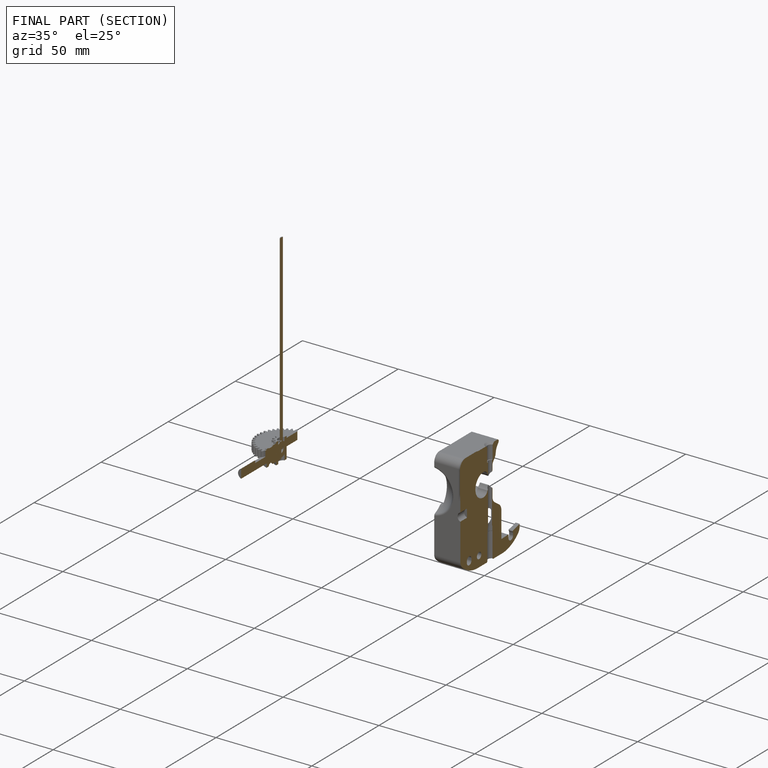
[diagram: finished part — half-section view (interior)]
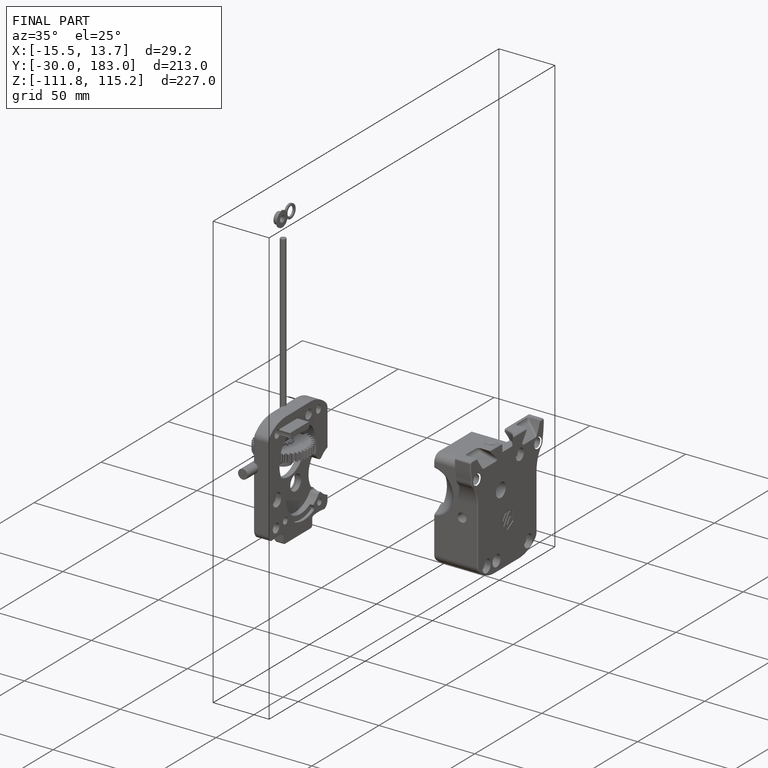
[diagram: finished part — iso view with bounding-box wireframe]
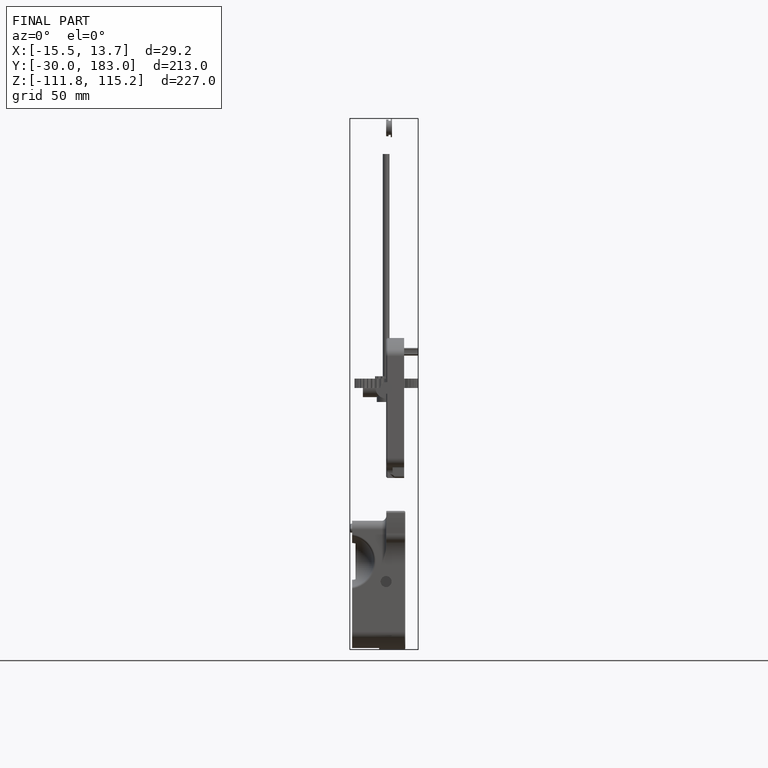
[diagram: finished part — front view with bounding-box wireframe]
